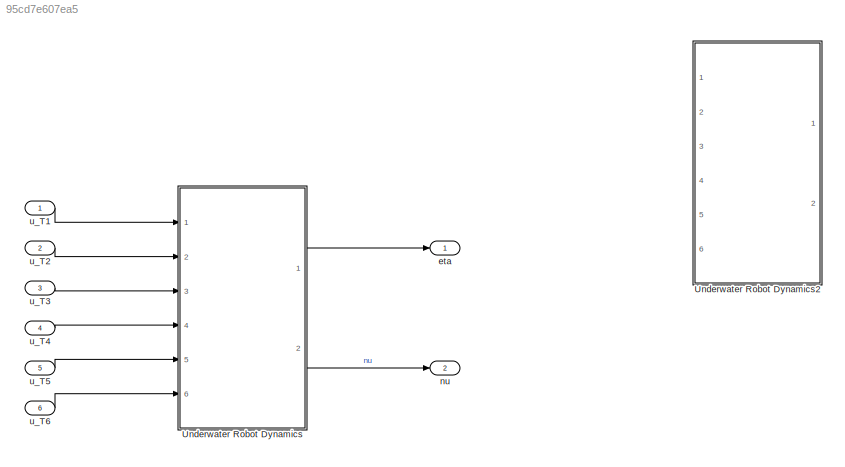
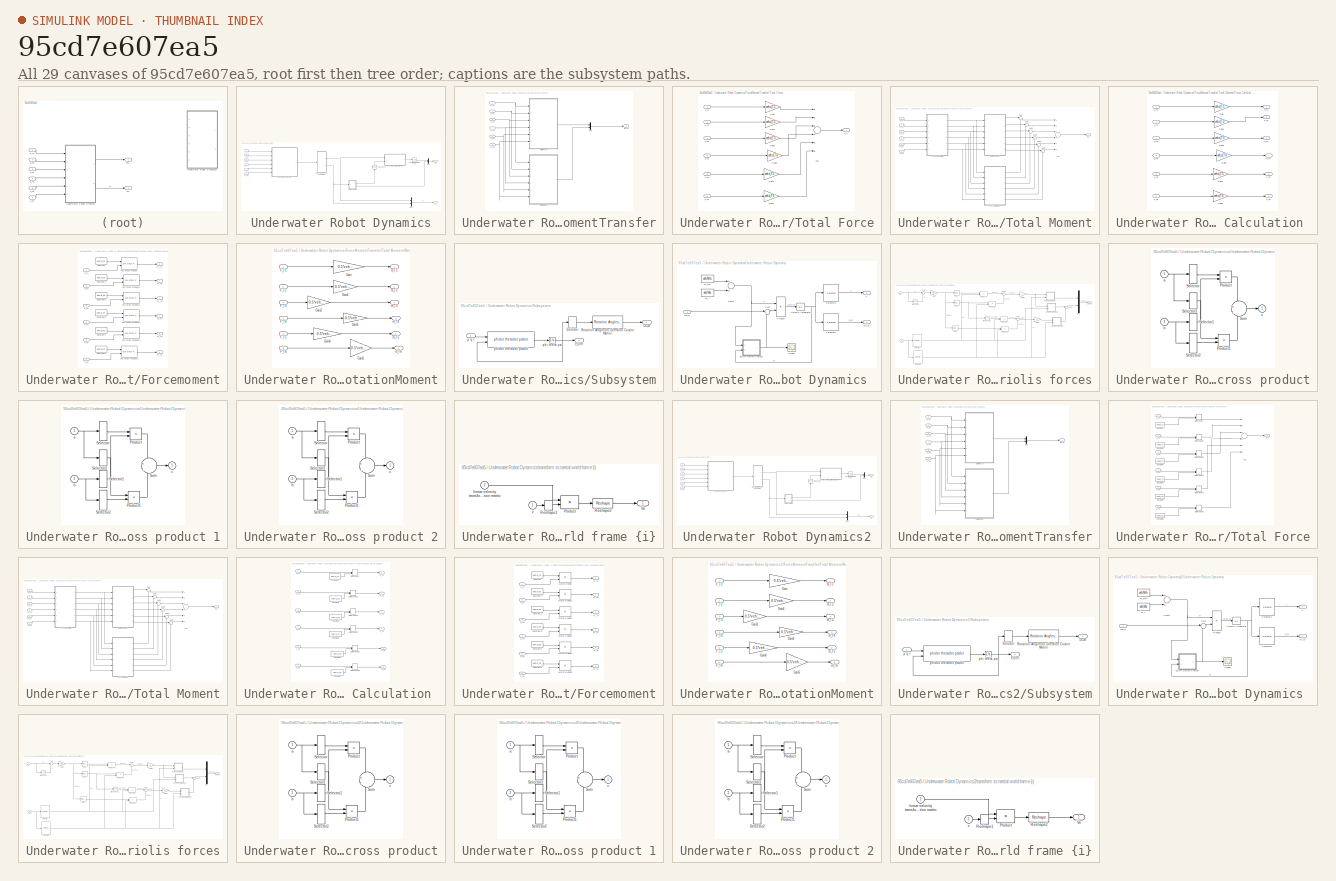
[diagram: thumbnail index - all 29 canvases of the model, root first then tree order]
MODEL slx_95cd7e607ea5
KIND model
CONFIG AbsTol = auto
CONFIG EnableMultiTasking = off
CONFIG FixedStep = auto
CONFIG MaxStep = auto
CONFIG MinStep = auto
CONFIG RelTol = 1e-3
CONFIG SampleTimeConstraint = Unconstrained
CONFIG Solver = VariableStepAuto
CONFIG SolverName = VariableStepAuto
CONFIG StartTime = 0.0
CONFIG StopTime = 10.0
BLOCK [SubSystem] Underwater Robot Dynamics
  Ports = [6, 2]
  RequestExecContextInheritance = off
  Variant = off
BLOCK [SubSystem] Underwater Robot Dynamics/ForceMomentTransfer
  Ports = [6, 1]
  RequestExecContextInheritance = off
  Variant = off
BLOCK [Mux] Underwater Robot Dynamics/ForceMomentTransfer/Mux
  DisplayOption = bar
  Inputs = 2
  Ports = [2, 1]
BLOCK [SubSystem] Underwater Robot Dynamics/ForceMomentTransfer/Total Force
  Ports = [6, 1]
  RequestExecContextInheritance = off
  Variant = off
BLOCK [Sum] Underwater Robot Dynamics/ForceMomentTransfer/Total Force/Add
  InputSameDT = off
  Inputs = ++++++
  OutDataTypeStr = Inherit: Inherit via internal rule
  Ports = [6, 1]
  SaturateOnIntegerOverflow = off
BLOCK [Outport] Underwater Robot Dynamics/ForceMomentTransfer/Total Force/F_T
  IconDisplay = Port number
BLOCK [Gain] Underwater Robot Dynamics/ForceMomentTransfer/Total Force/Gain
  Gain = veh.d_T1
  OutDataTypeStr = Inherit: Inherit via internal rule
  ParamDataTypeStr = Inherit: Inherit via internal rule
  SaturateOnIntegerOverflow = off
BLOCK [Gain] Underwater Robot Dynamics/ForceMomentTransfer/Total Force/Gain1
  Gain = veh.d_T2
  OutDataTypeStr = Inherit: Inherit via internal rule
  ParamDataTypeStr = Inherit: Inherit via internal rule
  SaturateOnIntegerOverflow = off
BLOCK [Gain] Underwater Robot Dynamics/ForceMomentTransfer/Total Force/Gain2
  Gain = veh.d_T3
  OutDataTypeStr = Inherit: Inherit via internal rule
  ParamDataTypeStr = Inherit: Inherit via internal rule
  SaturateOnIntegerOverflow = off
BLOCK [Gain] Underwater Robot Dynamics/ForceMomentTransfer/Total Force/Gain3
  Gain = veh.d_T4
  OutDataTypeStr = Inherit: Inherit via internal rule
  ParamDataTypeStr = Inherit: Inherit via internal rule
  SaturateOnIntegerOverflow = off
BLOCK [Gain] Underwater Robot Dynamics/ForceMomentTransfer/Total Force/Gain4
  Gain = veh.d_T5
  OutDataTypeStr = Inherit: Inherit via internal rule
  ParamDataTypeStr = Inherit: Inherit via internal rule
  SaturateOnIntegerOverflow = off
BLOCK [Gain] Underwater Robot Dynamics/ForceMomentTransfer/Total Force/Gain5
  Gain = veh.d_T6
  OutDataTypeStr = Inherit: Inherit via internal rule
  ParamDataTypeStr = Inherit: Inherit via internal rule
  SaturateOnIntegerOverflow = off
BLOCK [Inport] Underwater Robot Dynamics/ForceMomentTransfer/Total Force/u_T1
  IconDisplay = Port number
BLOCK [Inport] Underwater Robot Dynamics/ForceMomentTransfer/Total Force/u_T2
  IconDisplay = Port number
  Port = 2
BLOCK [Inport] Underwater Robot Dynamics/ForceMomentTransfer/Total Force/u_T3
  IconDisplay = Port number
  Port = 3
BLOCK [Inport] Underwater Robot Dynamics/ForceMomentTransfer/Total Force/u_T4
  IconDisplay = Port number
  Port = 4
BLOCK [Inport] Underwater Robot Dynamics/ForceMomentTransfer/Total Force/u_T5
  IconDisplay = Port number
  Port = 5
BLOCK [Inport] Underwater Robot Dynamics/ForceMomentTransfer/Total Force/u_T6
  IconDisplay = Port number
  Port = 6
BLOCK [SubSystem] Underwater Robot Dynamics/ForceMomentTransfer/Total Moment
  Ports = [6, 1]
  RequestExecContextInheritance = off
  Variant = off
BLOCK [Sum] Underwater Robot Dynamics/ForceMomentTransfer/Total Moment/Add
  InputSameDT = off
  Inputs = ++++++
  OutDataTypeStr = Inherit: Inherit via internal rule
  Ports = [6, 1]
  SaturateOnIntegerOverflow = off
BLOCK [SubSystem] Underwater Robot Dynamics/ForceMomentTransfer/Total Moment/Force Calculation 
  Ports = [6, 6]
  RequestExecContextInheritance = off
  Variant = off
BLOCK [Outport] Underwater Robot Dynamics/ForceMomentTransfer/Total Moment/Force Calculation /F_T1
  IconDisplay = Port number
BLOCK [Outport] Underwater Robot Dynamics/ForceMomentTransfer/Total Moment/Force Calculation /F_T2
  IconDisplay = Port number
  Port = 2
BLOCK [Outport] Underwater Robot Dynamics/ForceMomentTransfer/Total Moment/Force Calculation /F_T3
  IconDisplay = Port number
  Port = 3
BLOCK [Outport] Underwater Robot Dynamics/ForceMomentTransfer/Total Moment/Force Calculation /F_T4
  IconDisplay = Port number
  Port = 4
BLOCK [Outport] Underwater Robot Dynamics/ForceMomentTransfer/Total Moment/Force Calculation /F_T5
  IconDisplay = Port number
  Port = 5
BLOCK [Outport] Underwater Robot Dynamics/ForceMomentTransfer/Total Moment/Force Calculation /F_T6
  IconDisplay = Port number
  Port = 6
BLOCK [Gain] Underwater Robot Dynamics/ForceMomentTransfer/Total Moment/Force Calculation /Gain
  Gain = veh.d_T1
  OutDataTypeStr = Inherit: Inherit via internal rule
  ParamDataTypeStr = Inherit: Inherit via internal rule
  SaturateOnIntegerOverflow = off
BLOCK [Gain] Underwater Robot Dynamics/ForceMomentTransfer/Total Moment/Force Calculation /Gain1
  Gain = veh.d_T2
  OutDataTypeStr = Inherit: Inherit via internal rule
  ParamDataTypeStr = Inherit: Inherit via internal rule
  SaturateOnIntegerOverflow = off
BLOCK [Gain] Underwater Robot Dynamics/ForceMomentTransfer/Total Moment/Force Calculation /Gain2
  Gain = veh.d_T3
  OutDataTypeStr = Inherit: Inherit via internal rule
  ParamDataTypeStr = Inherit: Inherit via internal rule
  SaturateOnIntegerOverflow = off
BLOCK [Gain] Underwater Robot Dynamics/ForceMomentTransfer/Total Moment/Force Calculation /Gain3
  Gain = veh.d_T4
  OutDataTypeStr = Inherit: Inherit via internal rule
  ParamDataTypeStr = Inherit: Inherit via internal rule
  SaturateOnIntegerOverflow = off
BLOCK [Gain] Underwater Robot Dynamics/ForceMomentTransfer/Total Moment/Force Calculation /Gain4
  Gain = veh.d_T5
  OutDataTypeStr = Inherit: Inherit via internal rule
  ParamDataTypeStr = Inherit: Inherit via internal rule
  SaturateOnIntegerOverflow = off
BLOCK [Gain] Underwater Robot Dynamics/ForceMomentTransfer/Total Moment/Force Calculation /Gain5
  Gain = veh.d_T6
  OutDataTypeStr = Inherit: Inherit via internal rule
  ParamDataTypeStr = Inherit: Inherit via internal rule
  SaturateOnIntegerOverflow = off
BLOCK [Inport] Underwater Robot Dynamics/ForceMomentTransfer/Total Moment/Force Calculation /u_T1
  IconDisplay = Port number
BLOCK [Inport] Underwater Robot Dynamics/ForceMomentTransfer/Total Moment/Force Calculation /u_T2
  IconDisplay = Port number
  Port = 2
BLOCK [Inport] Underwater Robot Dynamics/ForceMomentTransfer/Total Moment/Force Calculation /u_T3
  IconDisplay = Port number
  Port = 3
BLOCK [Inport] Underwater Robot Dynamics/ForceMomentTransfer/Total Moment/Force Calculation /u_T4
  IconDisplay = Port number
  Port = 4
BLOCK [Inport] Underwater Robot Dynamics/ForceMomentTransfer/Total Moment/Force Calculation /u_T5
  IconDisplay = Port number
  Port = 5
BLOCK [Inport] Underwater Robot Dynamics/ForceMomentTransfer/Total Moment/Force Calculation /u_T6
  IconDisplay = Port number
  Port = 6
BLOCK [SubSystem] Underwater Robot Dynamics/ForceMomentTransfer/Total Moment/Forcemoment
  Ports = [6, 6]
  RequestExecContextInheritance = off
  Variant = off
BLOCK [Reference] Underwater Robot Dynamics/ForceMomentTransfer/Total Moment/Forcemoment/3x3 Cross Product  REF=sharedutil/3x3 Cross Product
  Ports = [2, 1]
  SourceBlock = sharedutil/3x3 Cross Product
  SourceType = CrossProduct
BLOCK [Reference] Underwater Robot Dynamics/ForceMomentTransfer/Total Moment/Forcemoment/3x3 Cross Product1  REF=sharedutil/3x3 Cross Product
  Ports = [2, 1]
  SourceBlock = sharedutil/3x3 Cross Product
  SourceType = CrossProduct
BLOCK [Reference] Underwater Robot Dynamics/ForceMomentTransfer/Total Moment/Forcemoment/3x3 Cross Product2  REF=sharedutil/3x3 Cross Product
  Ports = [2, 1]
  SourceBlock = sharedutil/3x3 Cross Product
  SourceType = CrossProduct
BLOCK [Reference] Underwater Robot Dynamics/ForceMomentTransfer/Total Moment/Forcemoment/3x3 Cross Product3  REF=sharedutil/3x3 Cross Product
  Ports = [2, 1]
  SourceBlock = sharedutil/3x3 Cross Product
  SourceType = CrossProduct
BLOCK [Reference] Underwater Robot Dynamics/ForceMomentTransfer/Total Moment/Forcemoment/3x3 Cross Product4  REF=sharedutil/3x3 Cross Product
  Ports = [2, 1]
  SourceBlock = sharedutil/3x3 Cross Product
  SourceType = CrossProduct
BLOCK [Reference] Underwater Robot Dynamics/ForceMomentTransfer/Total Moment/Forcemoment/3x3 Cross Product5  REF=sharedutil/3x3 Cross Product
  Ports = [2, 1]
  SourceBlock = sharedutil/3x3 Cross Product
  SourceType = CrossProduct
BLOCK [Constant] Underwater Robot Dynamics/ForceMomentTransfer/Total Moment/Forcemoment/Constant
  Value = veh.d_T1
BLOCK [Constant] Underwater Robot Dynamics/ForceMomentTransfer/Total Moment/Forcemoment/Constant1
  Value = veh.d_T2
BLOCK [Constant] Underwater Robot Dynamics/ForceMomentTransfer/Total Moment/Forcemoment/Constant2
  Value = veh.d_T3
BLOCK [Constant] Underwater Robot Dynamics/ForceMomentTransfer/Total Moment/Forcemoment/Constant3
  Value = veh.d_T4
BLOCK [Constant] Underwater Robot Dynamics/ForceMomentTransfer/Total Moment/Forcemoment/Constant4
  Value = veh.d_T5
BLOCK [Constant] Underwater Robot Dynamics/ForceMomentTransfer/Total Moment/Forcemoment/Constant5
  Value = veh.d_T6
BLOCK [Inport] Underwater Robot Dynamics/ForceMomentTransfer/Total Moment/Forcemoment/F_T1
  IconDisplay = Port number
BLOCK [Inport] Underwater Robot Dynamics/ForceMomentTransfer/Total Moment/Forcemoment/F_T2
  IconDisplay = Port number
  Port = 2
BLOCK [Inport] Underwater Robot Dynamics/ForceMomentTransfer/Total Moment/Forcemoment/F_T3
  IconDisplay = Port number
  Port = 3
BLOCK [Inport] Underwater Robot Dynamics/ForceMomentTransfer/Total Moment/Forcemoment/F_T4
  IconDisplay = Port number
  Port = 4
BLOCK [Inport] Underwater Robot Dynamics/ForceMomentTransfer/Total Moment/Forcemoment/F_T5
  IconDisplay = Port number
  Port = 5
BLOCK [Inport] Underwater Robot Dynamics/ForceMomentTransfer/Total Moment/Forcemoment/F_T6
  IconDisplay = Port number
  Port = 6
BLOCK [Outport] Underwater Robot Dynamics/ForceMomentTransfer/Total Moment/Forcemoment/m_T1
  IconDisplay = Port number
BLOCK [Outport] Underwater Robot Dynamics/ForceMomentTransfer/Total Moment/Forcemoment/m_T2
  IconDisplay = Port number
  Port = 2
BLOCK [Outport] Underwater Robot Dynamics/ForceMomentTransfer/Total Moment/Forcemoment/m_T3
  IconDisplay = Port number
  Port = 3
BLOCK [Outport] Underwater Robot Dynamics/ForceMomentTransfer/Total Moment/Forcemoment/m_T4
  IconDisplay = Port number
  Port = 4
BLOCK [Outport] Underwater Robot Dynamics/ForceMomentTransfer/Total Moment/Forcemoment/m_T5
  IconDisplay = Port number
  Port = 5
BLOCK [Outport] Underwater Robot Dynamics/ForceMomentTransfer/Total Moment/Forcemoment/m_T6
  IconDisplay = Port number
  Port = 6
BLOCK [SubSystem] Underwater Robot Dynamics/ForceMomentTransfer/Total Moment/RotationMoment
  Ports = [6, 6]
  RequestExecContextInheritance = off
  Variant = off
BLOCK [Inport] Underwater Robot Dynamics/ForceMomentTransfer/Total Moment/RotationMoment/F_T1
  IconDisplay = Port number
BLOCK [Inport] Underwater Robot Dynamics/ForceMomentTransfer/Total Moment/RotationMoment/F_T2
  IconDisplay = Port number
  Port = 2
BLOCK [Inport] Underwater Robot Dynamics/ForceMomentTransfer/Total Moment/RotationMoment/F_T3
  IconDisplay = Port number
  Port = 3
BLOCK [Inport] Underwater Robot Dynamics/ForceMomentTransfer/Total Moment/RotationMoment/F_T4
  IconDisplay = Port number
  Port = 4
BLOCK [Inport] Underwater Robot Dynamics/ForceMomentTransfer/Total Moment/RotationMoment/F_T5
  IconDisplay = Port number
  Port = 5
BLOCK [Inport] Underwater Robot Dynamics/ForceMomentTransfer/Total Moment/RotationMoment/F_T6
  IconDisplay = Port number
  Port = 6
BLOCK [Gain] Underwater Robot Dynamics/ForceMomentTransfer/Total Moment/RotationMoment/Gain
  Gain = 0.5*veh.b_T1
  OutDataTypeStr = Inherit: Inherit via internal rule
  ParamDataTypeStr = Inherit: Inherit via internal rule
  SaturateOnIntegerOverflow = off
BLOCK [Gain] Underwater Robot Dynamics/ForceMomentTransfer/Total Moment/RotationMoment/Gain1
  Gain = 0.5*veh.b_T2
  OutDataTypeStr = Inherit: Inherit via internal rule
  ParamDataTypeStr = Inherit: Inherit via internal rule
  SaturateOnIntegerOverflow = off
BLOCK [Gain] Underwater Robot Dynamics/ForceMomentTransfer/Total Moment/RotationMoment/Gain2
  Gain = 0.5*veh.b_T3
  OutDataTypeStr = Inherit: Inherit via internal rule
  ParamDataTypeStr = Inherit: Inherit via internal rule
  SaturateOnIntegerOverflow = off
BLOCK [Gain] Underwater Robot Dynamics/ForceMomentTransfer/Total Moment/RotationMoment/Gain3
  Gain = 0.5*veh.b_T4
  OutDataTypeStr = Inherit: Inherit via internal rule
  ParamDataTypeStr = Inherit: Inherit via internal rule
  SaturateOnIntegerOverflow = off
BLOCK [Gain] Underwater Robot Dynamics/ForceMomentTransfer/Total Moment/RotationMoment/Gain4
  Gain = 0.5*veh.b_T5
  OutDataTypeStr = Inherit: Inherit via internal rule
  ParamDataTypeStr = Inherit: Inherit via internal rule
  SaturateOnIntegerOverflow = off
BLOCK [Gain] Underwater Robot Dynamics/ForceMomentTransfer/Total Moment/RotationMoment/Gain5
  Gain = 0.5*veh.b_T6
  OutDataTypeStr = Inherit: Inherit via internal rule
  ParamDataTypeStr = Inherit: Inherit via internal rule
  SaturateOnIntegerOverflow = off
BLOCK [Outport] Underwater Robot Dynamics/ForceMomentTransfer/Total Moment/RotationMoment/m_T1
  IconDisplay = Port number
BLOCK [Outport] Underwater Robot Dynamics/ForceMomentTransfer/Total Moment/RotationMoment/m_T2
  IconDisplay = Port number
  Port = 2
BLOCK [Outport] Underwater Robot Dynamics/ForceMomentTransfer/Total Moment/RotationMoment/m_T3
  IconDisplay = Port number
  Port = 3
BLOCK [Outport] Underwater Robot Dynamics/ForceMomentTransfer/Total Moment/RotationMoment/m_T4
  IconDisplay = Port number
  Port = 4
BLOCK [Outport] Underwater Robot Dynamics/ForceMomentTransfer/Total Moment/RotationMoment/m_T5
  IconDisplay = Port number
  Port = 5
BLOCK [Outport] Underwater Robot Dynamics/ForceMomentTransfer/Total Moment/RotationMoment/m_T6
  IconDisplay = Port number
  Port = 6
BLOCK [Sum] Underwater Robot Dynamics/ForceMomentTransfer/Total Moment/Sum
  IconShape = round
  InputSameDT = off
  Inputs = |++
  OutDataTypeStr = Inherit: Inherit via internal rule
  Ports = [2, 1]
  SaturateOnIntegerOverflow = off
BLOCK [Sum] Underwater Robot Dynamics/ForceMomentTransfer/Total Moment/Sum1
  IconShape = round
  InputSameDT = off
  Inputs = |++
  OutDataTypeStr = Inherit: Inherit via internal rule
  Ports = [2, 1]
  SaturateOnIntegerOverflow = off
BLOCK [Sum] Underwater Robot Dynamics/ForceMomentTransfer/Total Moment/Sum2
  IconShape = round
  InputSameDT = off
  Inputs = |++
  OutDataTypeStr = Inherit: Inherit via internal rule
  Ports = [2, 1]
  SaturateOnIntegerOverflow = off
BLOCK [Sum] Underwater Robot Dynamics/ForceMomentTransfer/Total Moment/Sum3
  IconShape = round
  InputSameDT = off
  Inputs = |++
  OutDataTypeStr = Inherit: Inherit via internal rule
  Ports = [2, 1]
  SaturateOnIntegerOverflow = off
BLOCK [Sum] Underwater Robot Dynamics/ForceMomentTransfer/Total Moment/Sum4
  IconShape = round
  InputSameDT = off
  Inputs = |++
  OutDataTypeStr = Inherit: Inherit via internal rule
  Ports = [2, 1]
  SaturateOnIntegerOverflow = off
BLOCK [Sum] Underwater Robot Dynamics/ForceMomentTransfer/Total Moment/Sum5
  IconShape = round
  InputSameDT = off
  Inputs = |++
  OutDataTypeStr = Inherit: Inherit via internal rule
  Ports = [2, 1]
  SaturateOnIntegerOverflow = off
BLOCK [Outport] Underwater Robot Dynamics/ForceMomentTransfer/Total Moment/m_T
  IconDisplay = Port number
BLOCK [Inport] Underwater Robot Dynamics/ForceMomentTransfer/Total Moment/u_T1
  IconDisplay = Port number
BLOCK [Inport] Underwater Robot Dynamics/ForceMomentTransfer/Total Moment/u_T2
  IconDisplay = Port number
  Port = 2
BLOCK [Inport] Underwater Robot Dynamics/ForceMomentTransfer/Total Moment/u_T3
  IconDisplay = Port number
  Port = 3
BLOCK [Inport] Underwater Robot Dynamics/ForceMomentTransfer/Total Moment/u_T4
  IconDisplay = Port number
  Port = 4
BLOCK [Inport] Underwater Robot Dynamics/ForceMomentTransfer/Total Moment/u_T5
  IconDisplay = Port number
  Port = 5
BLOCK [Inport] Underwater Robot Dynamics/ForceMomentTransfer/Total Moment/u_T6
  IconDisplay = Port number
  Port = 6
BLOCK [Outport] Underwater Robot Dynamics/ForceMomentTransfer/tau_b
  IconDisplay = Port number
BLOCK [Inport] Underwater Robot Dynamics/ForceMomentTransfer/u_T1
  IconDisplay = Port number
BLOCK [Inport] Underwater Robot Dynamics/ForceMomentTransfer/u_T2
  IconDisplay = Port number
  Port = 2
BLOCK [Inport] Underwater Robot Dynamics/ForceMomentTransfer/u_T3
  IconDisplay = Port number
  Port = 3
BLOCK [Inport] Underwater Robot Dynamics/ForceMomentTransfer/u_T4
  IconDisplay = Port number
  Port = 4
BLOCK [Inport] Underwater Robot Dynamics/ForceMomentTransfer/u_T5
  IconDisplay = Port number
  Port = 5
BLOCK [Inport] Underwater Robot Dynamics/ForceMomentTransfer/u_T6
  IconDisplay = Port number
  Port = 6
BLOCK [Mux] Underwater Robot Dynamics/Mux
  DisplayOption = bar
  Inputs = 2
  Ports = [2, 1]
BLOCK [Mux] Underwater Robot Dynamics/Mux1
  DisplayOption = bar
  Inputs = 2
  Ports = [2, 1]
BLOCK [Integrator] Underwater Robot Dynamics/Position Integrator(x,y,z)
  Ports = [1, 1]
BLOCK [SubSystem] Underwater Robot Dynamics/Subsystem
  Ports = [1, 2]
  RequestExecContextInheritance = off
  Variant = off
BLOCK [Outport] Underwater Robot Dynamics/Subsystem/DCM
  IconDisplay = Port number
BLOCK [Outport] Underwater Robot Dynamics/Subsystem/Euler
  IconDisplay = Port number
  Port = 2
BLOCK [Reference] Underwater Robot Dynamics/Subsystem/Rotation Angles to Direction Cosine Matrix  REF=sharedtransform/Rotation Angles to
Direction Cosine Matrix
  AttributesFormatString = Rotation Order: %<rotationOrder>
  Ports = [1, 1]
  SourceBlock = sharedtransform/Rotation Angles to\nDirection Cosine Matrix
  SourceType = Ang2DCM
BLOCK [Selector] Underwater Robot Dynamics/Subsystem/Selector
  IndexOptions = Index vector (dialog)
  Indices = [3 2 1]
  InputPortWidth = 3
  OutputSizes = 1
  Ports = [1, 1]
BLOCK [Inport] Underwater Robot Dynamics/Subsystem/p q r 
  IconDisplay = Port number
BLOCK [Integrator] Underwater Robot Dynamics/Subsystem/phi theta psi
  Ports = [1, 1]
BLOCK [Reference] Underwater Robot Dynamics/Subsystem/phidot thetadot psidot  REF=shared6dofsys/DCM & Euler Angles (Euler)/phidot  (lib defined in slx_91fbb8bad28b)
thetadot
psidot
  Ports = [2, 1]
  SourceBlock = shared6dofsys/DCM & Euler Angles (Euler)/phidot\nthetadot\npsidot
  SourceType = SubSystem
BLOCK [Math] Underwater Robot Dynamics/Transpose
  Operator = transpose
  Ports = [1, 1]
BLOCK [SubSystem] Underwater Robot Dynamics/Underwater Robot Dynamics 
  Ports = [1, 2]
  RequestExecContextInheritance = off
  Variant = off
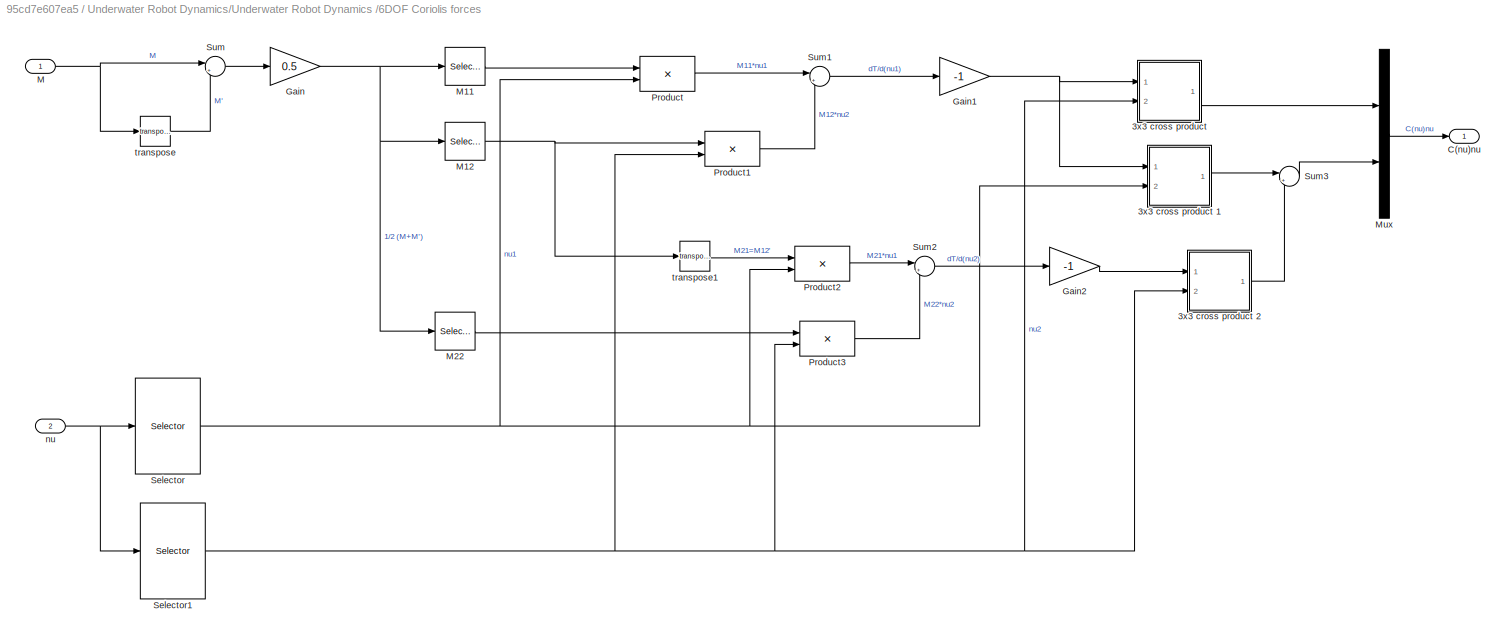
BLOCK [SubSystem] Underwater Robot Dynamics/Underwater Robot Dynamics /6DOF Coriolis forces
  Ports = [2, 1]
  RequestExecContextInheritance = off
  Variant = off
BLOCK [SubSystem] Underwater Robot Dynamics/Underwater Robot Dynamics /6DOF Coriolis forces/3x3 cross product
  Ports = [2, 1]
  RequestExecContextInheritance = off
  Variant = off
BLOCK [SubSystem] Underwater Robot Dynamics/Underwater Robot Dynamics /6DOF Coriolis forces/3x3 cross product 1
  Ports = [2, 1]
  RequestExecContextInheritance = off
  Variant = off
BLOCK [Product] Underwater Robot Dynamics/Underwater Robot Dynamics /6DOF Coriolis forces/3x3 cross product 1/Product
  Ports = [2, 1]
  RndMeth = Floor
BLOCK [Product] Underwater Robot Dynamics/Underwater Robot Dynamics /6DOF Coriolis forces/3x3 cross product 1/Product1
  Ports = [2, 1]
  RndMeth = Floor
BLOCK [Selector] Underwater Robot Dynamics/Underwater Robot Dynamics /6DOF Coriolis forces/3x3 cross product 1/Selector
  IndexOptions = Index vector (dialog)
  Indices = [2 3 1]
  InputPortWidth = 3
  OutputSizes = 1
  Ports = [1, 1]
BLOCK [Selector] Underwater Robot Dynamics/Underwater Robot Dynamics /6DOF Coriolis forces/3x3 cross product 1/Selector1
  IndexOptions = Index vector (dialog)
  Indices = [3 1 2]
  InputPortWidth = 3
  OutputSizes = 1
  Ports = [1, 1]
BLOCK [Selector] Underwater Robot Dynamics/Underwater Robot Dynamics /6DOF Coriolis forces/3x3 cross product 1/Selector2
  IndexOptions = Index vector (dialog)
  Indices = [2 3 1]
  InputPortWidth = 3
  OutputSizes = 1
  Ports = [1, 1]
BLOCK [Selector] Underwater Robot Dynamics/Underwater Robot Dynamics /6DOF Coriolis forces/3x3 cross product 1/Selector3
  IndexOptions = Index vector (dialog)
  Indices = [3 1 2]
  InputPortWidth = 3
  OutputSizes = 1
  Ports = [1, 1]
BLOCK [Sum] Underwater Robot Dynamics/Underwater Robot Dynamics /6DOF Coriolis forces/3x3 cross product 1/Sum
  IconShape = round
  Inputs = +|-
  Ports = [2, 1]
BLOCK [Inport] Underwater Robot Dynamics/Underwater Robot Dynamics /6DOF Coriolis forces/3x3 cross product 1/a
  IconDisplay = Port number
BLOCK [Inport] Underwater Robot Dynamics/Underwater Robot Dynamics /6DOF Coriolis forces/3x3 cross product 1/b
  IconDisplay = Port number
  Port = 2
BLOCK [Outport] Underwater Robot Dynamics/Underwater Robot Dynamics /6DOF Coriolis forces/3x3 cross product 1/c
  IconDisplay = Port number
  InitialOutput = 0
BLOCK [SubSystem] Underwater Robot Dynamics/Underwater Robot Dynamics /6DOF Coriolis forces/3x3 cross product 2
  Ports = [2, 1]
  RequestExecContextInheritance = off
  Variant = off
BLOCK [Product] Underwater Robot Dynamics/Underwater Robot Dynamics /6DOF Coriolis forces/3x3 cross product 2/Product
  Ports = [2, 1]
  RndMeth = Floor
BLOCK [Product] Underwater Robot Dynamics/Underwater Robot Dynamics /6DOF Coriolis forces/3x3 cross product 2/Product1
  Ports = [2, 1]
  RndMeth = Floor
BLOCK [Selector] Underwater Robot Dynamics/Underwater Robot Dynamics /6DOF Coriolis forces/3x3 cross product 2/Selector
  IndexOptions = Index vector (dialog)
  Indices = [2 3 1]
  InputPortWidth = 3
  OutputSizes = 1
  Ports = [1, 1]
BLOCK [Selector] Underwater Robot Dynamics/Underwater Robot Dynamics /6DOF Coriolis forces/3x3 cross product 2/Selector1
  IndexOptions = Index vector (dialog)
  Indices = [3 1 2]
  InputPortWidth = 3
  OutputSizes = 1
  Ports = [1, 1]
BLOCK [Selector] Underwater Robot Dynamics/Underwater Robot Dynamics /6DOF Coriolis forces/3x3 cross product 2/Selector2
  IndexOptions = Index vector (dialog)
  Indices = [2 3 1]
  InputPortWidth = 3
  OutputSizes = 1
  Ports = [1, 1]
BLOCK [Selector] Underwater Robot Dynamics/Underwater Robot Dynamics /6DOF Coriolis forces/3x3 cross product 2/Selector3
  IndexOptions = Index vector (dialog)
  Indices = [3 1 2]
  InputPortWidth = 3
  OutputSizes = 1
  Ports = [1, 1]
BLOCK [Sum] Underwater Robot Dynamics/Underwater Robot Dynamics /6DOF Coriolis forces/3x3 cross product 2/Sum
  IconShape = round
  Inputs = +|-
  Ports = [2, 1]
BLOCK [Inport] Underwater Robot Dynamics/Underwater Robot Dynamics /6DOF Coriolis forces/3x3 cross product 2/a
  IconDisplay = Port number
BLOCK [Inport] Underwater Robot Dynamics/Underwater Robot Dynamics /6DOF Coriolis forces/3x3 cross product 2/b
  IconDisplay = Port number
  Port = 2
BLOCK [Outport] Underwater Robot Dynamics/Underwater Robot Dynamics /6DOF Coriolis forces/3x3 cross product 2/c
  IconDisplay = Port number
  InitialOutput = 0
BLOCK [Product] Underwater Robot Dynamics/Underwater Robot Dynamics /6DOF Coriolis forces/3x3 cross product/Product
  Ports = [2, 1]
  RndMeth = Floor
BLOCK [Product] Underwater Robot Dynamics/Underwater Robot Dynamics /6DOF Coriolis forces/3x3 cross product/Product1
  Ports = [2, 1]
  RndMeth = Floor
BLOCK [Selector] Underwater Robot Dynamics/Underwater Robot Dynamics /6DOF Coriolis forces/3x3 cross product/Selector
  IndexOptions = Index vector (dialog)
  Indices = [2 3 1]
  InputPortWidth = 3
  OutputSizes = 1
  Ports = [1, 1]
BLOCK [Selector] Underwater Robot Dynamics/Underwater Robot Dynamics /6DOF Coriolis forces/3x3 cross product/Selector1
  IndexOptions = Index vector (dialog)
  Indices = [3 1 2]
  InputPortWidth = 3
  OutputSizes = 1
  Ports = [1, 1]
BLOCK [Selector] Underwater Robot Dynamics/Underwater Robot Dynamics /6DOF Coriolis forces/3x3 cross product/Selector2
  IndexOptions = Index vector (dialog)
  Indices = [2 3 1]
  InputPortWidth = 3
  OutputSizes = 1
  Ports = [1, 1]
BLOCK [Selector] Underwater Robot Dynamics/Underwater Robot Dynamics /6DOF Coriolis forces/3x3 cross product/Selector3
  IndexOptions = Index vector (dialog)
  Indices = [3 1 2]
  InputPortWidth = 3
  OutputSizes = 1
  Ports = [1, 1]
BLOCK [Sum] Underwater Robot Dynamics/Underwater Robot Dynamics /6DOF Coriolis forces/3x3 cross product/Sum
  IconShape = round
  Inputs = +|-
  Ports = [2, 1]
BLOCK [Inport] Underwater Robot Dynamics/Underwater Robot Dynamics /6DOF Coriolis forces/3x3 cross product/a
  IconDisplay = Port number
BLOCK [Inport] Underwater Robot Dynamics/Underwater Robot Dynamics /6DOF Coriolis forces/3x3 cross product/b
  IconDisplay = Port number
  Port = 2
BLOCK [Outport] Underwater Robot Dynamics/Underwater Robot Dynamics /6DOF Coriolis forces/3x3 cross product/c
  IconDisplay = Port number
  InitialOutput = 0
BLOCK [Outport] Underwater Robot Dynamics/Underwater Robot Dynamics /6DOF Coriolis forces/C(nu)nu
  IconDisplay = Port number
BLOCK [Gain] Underwater Robot Dynamics/Underwater Robot Dynamics /6DOF Coriolis forces/Gain
  Gain = 0.5
BLOCK [Gain] Underwater Robot Dynamics/Underwater Robot Dynamics /6DOF Coriolis forces/Gain1
  Gain = -1
BLOCK [Gain] Underwater Robot Dynamics/Underwater Robot Dynamics /6DOF Coriolis forces/Gain2
  Gain = -1
BLOCK [Inport] Underwater Robot Dynamics/Underwater Robot Dynamics /6DOF Coriolis forces/M
  IconDisplay = Port number
BLOCK [Selector] Underwater Robot Dynamics/Underwater Robot Dynamics /6DOF Coriolis forces/M11
  IndexOptions = Index vector (dialog),Index vector (dialog)
  Indices = [1 2 3],[1 2 3]
  InputPortWidth = 3
  NumberOfDimensions = 2
  OutputSizes = 1
  Ports = [1, 1]
BLOCK [Selector] Underwater Robot Dynamics/Underwater Robot Dynamics /6DOF Coriolis forces/M12
  IndexOptions = Index vector (dialog),Index vector (dialog)
  Indices = [1 2 3],[4 5 6]
  InputPortWidth = 3
  NumberOfDimensions = 2
  OutputSizes = 1
  Ports = [1, 1]
BLOCK [Selector] Underwater Robot Dynamics/Underwater Robot Dynamics /6DOF Coriolis forces/M22
  IndexOptions = Index vector (dialog),Index vector (dialog)
  Indices = [4 5 6],[4 5 6]
  InputPortWidth = 3
  NumberOfDimensions = 2
  OutputSizes = 1
  Ports = [1, 1]
BLOCK [Mux] Underwater Robot Dynamics/Underwater Robot Dynamics /6DOF Coriolis forces/Mux
  DisplayOption = bar
  Inputs = 2
  Ports = [2, 1]
BLOCK [Product] Underwater Robot Dynamics/Underwater Robot Dynamics /6DOF Coriolis forces/Product
  InputSameDT = off
  Multiplication = Matrix(*)
  Ports = [2, 1]
  RndMeth = Floor
BLOCK [Product] Underwater Robot Dynamics/Underwater Robot Dynamics /6DOF Coriolis forces/Product1
  InputSameDT = off
  Multiplication = Matrix(*)
  Ports = [2, 1]
  RndMeth = Floor
BLOCK [Product] Underwater Robot Dynamics/Underwater Robot Dynamics /6DOF Coriolis forces/Product2
  InputSameDT = off
  Multiplication = Matrix(*)
  Ports = [2, 1]
  RndMeth = Floor
BLOCK [Product] Underwater Robot Dynamics/Underwater Robot Dynamics /6DOF Coriolis forces/Product3
  InputSameDT = off
  Multiplication = Matrix(*)
  Ports = [2, 1]
  RndMeth = Floor
BLOCK [Selector] Underwater Robot Dynamics/Underwater Robot Dynamics /6DOF Coriolis forces/Selector
  IndexOptions = Index vector (dialog)
  Indices = [1 2 3]
  InputPortWidth = 6
  OutputSizes = 1
  Ports = [1, 1]
BLOCK [Selector] Underwater Robot Dynamics/Underwater Robot Dynamics /6DOF Coriolis forces/Selector1
  IndexOptions = Index vector (dialog)
  Indices = [4 5 6]
  InputPortWidth = 6
  OutputSizes = 1
  Ports = [1, 1]
BLOCK [Sum] Underwater Robot Dynamics/Underwater Robot Dynamics /6DOF Coriolis forces/Sum
  IconShape = round
  InputSameDT = off
  Inputs = |++
  OutDataTypeStr = Inherit: Inherit via internal rule
  Ports = [2, 1]
BLOCK [Sum] Underwater Robot Dynamics/Underwater Robot Dynamics /6DOF Coriolis forces/Sum1
  IconShape = round
  InputSameDT = off
  Inputs = |++
  OutDataTypeStr = Inherit: Inherit via internal rule
  Ports = [2, 1]
BLOCK [Sum] Underwater Robot Dynamics/Underwater Robot Dynamics /6DOF Coriolis forces/Sum2
  IconShape = round
  InputSameDT = off
  Inputs = |++
  OutDataTypeStr = Inherit: Inherit via internal rule
  Ports = [2, 1]
BLOCK [Sum] Underwater Robot Dynamics/Underwater Robot Dynamics /6DOF Coriolis forces/Sum3
  IconShape = round
  InputSameDT = off
  Inputs = |++
  OutDataTypeStr = Inherit: Inherit via internal rule
  Ports = [2, 1]
BLOCK [Inport] Underwater Robot Dynamics/Underwater Robot Dynamics /6DOF Coriolis forces/nu
  IconDisplay = Port number
  Port = 2
BLOCK [Math] Underwater Robot Dynamics/Underwater Robot Dynamics /6DOF Coriolis forces/transpose
  Operator = transpose
  Ports = [1, 1]
BLOCK [Math] Underwater Robot Dynamics/Underwater Robot Dynamics /6DOF Coriolis forces/transpose1
  Operator = transpose
  Ports = [1, 1]
BLOCK [Constant] Underwater Robot Dynamics/Underwater Robot Dynamics /M_A
  Value = veh.Ma
BLOCK [Constant] Underwater Robot Dynamics/Underwater Robot Dynamics /M_RB
  Value = veh.Mrb
BLOCK [Product] Underwater Robot Dynamics/Underwater Robot Dynamics /Product
  InputSameDT = off
  Inputs = /*
  Multiplication = Matrix(*)
  Ports = [2, 1]
  RndMeth = Floor
BLOCK [Scope] Underwater Robot Dynamics/Underwater Robot Dynamics /Scope
  NumInputPorts = 1
  Ports = [1]
  ScopeSpecificationString = Simulink.scopes.TimeScopeBlockCfg('CurrentConfiguration', extmgr.ConfigurationSet(extmgr.Configuration('Core','General UI',true),extmgr.Configuration('Core','Source UI',true),extmgr.Configuration('Sources','WiredSimulink',true,'DataLoggingVariableName','ScopeData3'),extmgr.Configuration('Visuals','Time Domain',true,'SerializedDisplays',{struct('MinYLimReal','-1.00000','MaxYLimReal','1.00000','YLab...<+1560ch>
BLOCK [Selector] Underwater Robot Dynamics/Underwater Robot Dynamics /Selector1
  IndexOptions = Index vector (dialog)
  Indices = [1 2 3]
  InputPortWidth = 6
  OutputSizes = 1
  Ports = [1, 1]
BLOCK [Selector] Underwater Robot Dynamics/Underwater Robot Dynamics /Selector2
  IndexOptions = Index vector (dialog)
  Indices = [4 5 6]
  InputPortWidth = 6
  OutputSizes = 1
  Ports = [1, 1]
BLOCK [Sum] Underwater Robot Dynamics/Underwater Robot Dynamics /Sum
  IconShape = round
  InputSameDT = off
  Inputs = |+-
  OutDataTypeStr = Inherit: Inherit via internal rule
  Ports = [2, 1]
  SaturateOnIntegerOverflow = off
BLOCK [Sum] Underwater Robot Dynamics/Underwater Robot Dynamics /Sum2
  InputSameDT = off
  OutDataTypeStr = Inherit: Inherit via internal rule
  Ports = [2, 1]
BLOCK [Integrator] Underwater Robot Dynamics/Underwater Robot Dynamics /Velocity Integrator
  Ports = [1, 1]
BLOCK [Inport] Underwater Robot Dynamics/Underwater Robot Dynamics /tau_b
  IconDisplay = Port number
BLOCK [Outport] Underwater Robot Dynamics/Underwater Robot Dynamics /v
  IconDisplay = Port number
BLOCK [Outport] Underwater Robot Dynamics/Underwater Robot Dynamics /w_ib
  IconDisplay = Port number
  Port = 2
BLOCK [Outport] Underwater Robot Dynamics/eta
  IconDisplay = Port number
BLOCK [Outport] Underwater Robot Dynamics/nu
  IconDisplay = Port number
  Port = 2
BLOCK [SubSystem] Underwater Robot Dynamics/transform to inertial world frame {i}
  Ports = [2, 1]
  RequestExecContextInheritance = off
  Variant = off
BLOCK [Product] Underwater Robot Dynamics/transform to inertial world frame {i}/Product
  Multiplication = Matrix(*)
  Ports = [2, 1]
  RndMeth = Floor
BLOCK [Reshape] Underwater Robot Dynamics/transform to inertial world frame {i}/Reshape1
  OutputDimensionality = Column vector (2-D)
  Ports = [1, 1]
BLOCK [Reshape] Underwater Robot Dynamics/transform to inertial world frame {i}/Reshape2
  Ports = [1, 1]
BLOCK [Outport] Underwater Robot Dynamics/transform to inertial world frame {i}/Ve
  IconDisplay = Port number
BLOCK [Inport] Underwater Robot Dynamics/transform to inertial world frame {i}/linear velocity transformation matrix
  IconDisplay = Port number
  Port = 2
BLOCK [Inport] Underwater Robot Dynamics/transform to inertial world frame {i}/v
  IconDisplay = Port number
BLOCK [Inport] Underwater Robot Dynamics/u_T1
  IconDisplay = Port number
BLOCK [Inport] Underwater Robot Dynamics/u_T2
  IconDisplay = Port number
  Port = 2
BLOCK [Inport] Underwater Robot Dynamics/u_T3
  IconDisplay = Port number
  Port = 3
BLOCK [Inport] Underwater Robot Dynamics/u_T4
  IconDisplay = Port number
  Port = 4
BLOCK [Inport] Underwater Robot Dynamics/u_T5
  IconDisplay = Port number
  Port = 5
BLOCK [Inport] Underwater Robot Dynamics/u_T6
  IconDisplay = Port number
  Port = 6
BLOCK [SubSystem] Underwater Robot Dynamics2
  Commented = on
  Ports = [6, 2]
  RequestExecContextInheritance = off
  Variant = off
BLOCK [SubSystem] Underwater Robot Dynamics2/ForceMomentTransfer
  Ports = [6, 1]
  RequestExecContextInheritance = off
  Variant = off
BLOCK [Mux] Underwater Robot Dynamics2/ForceMomentTransfer/Mux
  DisplayOption = bar
  Inputs = 2
  Ports = [2, 1]
BLOCK [SubSystem] Underwater Robot Dynamics2/ForceMomentTransfer/Total Force
  Ports = [6, 1]
  RequestExecContextInheritance = off
  Variant = off
BLOCK [Sum] Underwater Robot Dynamics2/ForceMomentTransfer/Total Force/Add
  InputSameDT = off
  Inputs = ++++++
  OutDataTypeStr = Inherit: Inherit via internal rule
  Ports = [6, 1]
  SaturateOnIntegerOverflow = off
BLOCK [Constant] Underwater Robot Dynamics2/ForceMomentTransfer/Total Force/Constant
  Value = veh.d_T1
BLOCK [Constant] Underwater Robot Dynamics2/ForceMomentTransfer/Total Force/Constant1
  Value = veh.d_T2
BLOCK [Constant] Underwater Robot Dynamics2/ForceMomentTransfer/Total Force/Constant2
  Value = veh.d_T3
BLOCK [Constant] Underwater Robot Dynamics2/ForceMomentTransfer/Total Force/Constant3
  Value = veh.d_T4
BLOCK [Constant] Underwater Robot Dynamics2/ForceMomentTransfer/Total Force/Constant4
  Value = veh.d_T5
BLOCK [Constant] Underwater Robot Dynamics2/ForceMomentTransfer/Total Force/Constant5
  Value = veh.d_T6
BLOCK [DotProduct] Underwater Robot Dynamics2/ForceMomentTransfer/Total Force/Dot Product
  OutDataTypeStr = Inherit: Inherit via internal rule
BLOCK [DotProduct] Underwater Robot Dynamics2/ForceMomentTransfer/Total Force/Dot Product1
  OutDataTypeStr = Inherit: Inherit via internal rule
BLOCK [DotProduct] Underwater Robot Dynamics2/ForceMomentTransfer/Total Force/Dot Product2
  OutDataTypeStr = Inherit: Inherit via internal rule
BLOCK [DotProduct] Underwater Robot Dynamics2/ForceMomentTransfer/Total Force/Dot Product3
  OutDataTypeStr = Inherit: Inherit via internal rule
BLOCK [DotProduct] Underwater Robot Dynamics2/ForceMomentTransfer/Total Force/Dot Product4
  OutDataTypeStr = Inherit: Inherit via internal rule
BLOCK [DotProduct] Underwater Robot Dynamics2/ForceMomentTransfer/Total Force/Dot Product5
  OutDataTypeStr = Inherit: Inherit via internal rule
BLOCK [Outport] Underwater Robot Dynamics2/ForceMomentTransfer/Total Force/F_T
  IconDisplay = Port number
BLOCK [Inport] Underwater Robot Dynamics2/ForceMomentTransfer/Total Force/u_T1
  IconDisplay = Port number
BLOCK [Inport] Underwater Robot Dynamics2/ForceMomentTransfer/Total Force/u_T2
  IconDisplay = Port number
  Port = 2
BLOCK [Inport] Underwater Robot Dynamics2/ForceMomentTransfer/Total Force/u_T3
  IconDisplay = Port number
  Port = 3
BLOCK [Inport] Underwater Robot Dynamics2/ForceMomentTransfer/Total Force/u_T4
  IconDisplay = Port number
  Port = 4
BLOCK [Inport] Underwater Robot Dynamics2/ForceMomentTransfer/Total Force/u_T5
  IconDisplay = Port number
  Port = 5
BLOCK [Inport] Underwater Robot Dynamics2/ForceMomentTransfer/Total Force/u_T6
  IconDisplay = Port number
  Port = 6
BLOCK [SubSystem] Underwater Robot Dynamics2/ForceMomentTransfer/Total Moment
  Ports = [6, 1]
  RequestExecContextInheritance = off
  Variant = off
BLOCK [Sum] Underwater Robot Dynamics2/ForceMomentTransfer/Total Moment/Add
  InputSameDT = off
  Inputs = ++++++
  OutDataTypeStr = Inherit: Inherit via internal rule
  Ports = [6, 1]
  SaturateOnIntegerOverflow = off
BLOCK [SubSystem] Underwater Robot Dynamics2/ForceMomentTransfer/Total Moment/Force Calculation 
  Ports = [6, 6]
  RequestExecContextInheritance = off
  Variant = off
BLOCK [Constant] Underwater Robot Dynamics2/ForceMomentTransfer/Total Moment/Force Calculation /Constant
  Value = veh.d_T1
BLOCK [Constant] Underwater Robot Dynamics2/ForceMomentTransfer/Total Moment/Force Calculation /Constant1
  Value = veh.d_T2
BLOCK [Constant] Underwater Robot Dynamics2/ForceMomentTransfer/Total Moment/Force Calculation /Constant2
  Value = veh.d_T3
BLOCK [Constant] Underwater Robot Dynamics2/ForceMomentTransfer/Total Moment/Force Calculation /Constant3
  Value = veh.d_T4
BLOCK [Constant] Underwater Robot Dynamics2/ForceMomentTransfer/Total Moment/Force Calculation /Constant4
  Value = veh.d_T5
BLOCK [Constant] Underwater Robot Dynamics2/ForceMomentTransfer/Total Moment/Force Calculation /Constant5
  Value = veh.d_T6
BLOCK [DotProduct] Underwater Robot Dynamics2/ForceMomentTransfer/Total Moment/Force Calculation /Dot Product
  OutDataTypeStr = Inherit: Inherit via internal rule
BLOCK [DotProduct] Underwater Robot Dynamics2/ForceMomentTransfer/Total Moment/Force Calculation /Dot Product1
  OutDataTypeStr = Inherit: Inherit via internal rule
BLOCK [DotProduct] Underwater Robot Dynamics2/ForceMomentTransfer/Total Moment/Force Calculation /Dot Product2
  OutDataTypeStr = Inherit: Inherit via internal rule
BLOCK [DotProduct] Underwater Robot Dynamics2/ForceMomentTransfer/Total Moment/Force Calculation /Dot Product3
  OutDataTypeStr = Inherit: Inherit via internal rule
BLOCK [DotProduct] Underwater Robot Dynamics2/ForceMomentTransfer/Total Moment/Force Calculation /Dot Product4
  OutDataTypeStr = Inherit: Inherit via internal rule
BLOCK [DotProduct] Underwater Robot Dynamics2/ForceMomentTransfer/Total Moment/Force Calculation /Dot Product5
  OutDataTypeStr = Inherit: Inherit via internal rule
BLOCK [Outport] Underwater Robot Dynamics2/ForceMomentTransfer/Total Moment/Force Calculation /F_T1
  IconDisplay = Port number
BLOCK [Outport] Underwater Robot Dynamics2/ForceMomentTransfer/Total Moment/Force Calculation /F_T2
  IconDisplay = Port number
  Port = 2
BLOCK [Outport] Underwater Robot Dynamics2/ForceMomentTransfer/Total Moment/Force Calculation /F_T3
  IconDisplay = Port number
  Port = 3
BLOCK [Outport] Underwater Robot Dynamics2/ForceMomentTransfer/Total Moment/Force Calculation /F_T4
  IconDisplay = Port number
  Port = 4
BLOCK [Outport] Underwater Robot Dynamics2/ForceMomentTransfer/Total Moment/Force Calculation /F_T5
  IconDisplay = Port number
  Port = 5
BLOCK [Outport] Underwater Robot Dynamics2/ForceMomentTransfer/Total Moment/Force Calculation /F_T6
  IconDisplay = Port number
  Port = 6
BLOCK [Inport] Underwater Robot Dynamics2/ForceMomentTransfer/Total Moment/Force Calculation /u_T1
  IconDisplay = Port number
BLOCK [Inport] Underwater Robot Dynamics2/ForceMomentTransfer/Total Moment/Force Calculation /u_T2
  IconDisplay = Port number
  Port = 2
BLOCK [Inport] Underwater Robot Dynamics2/ForceMomentTransfer/Total Moment/Force Calculation /u_T3
  IconDisplay = Port number
  Port = 3
BLOCK [Inport] Underwater Robot Dynamics2/ForceMomentTransfer/Total Moment/Force Calculation /u_T4
  IconDisplay = Port number
  Port = 4
BLOCK [Inport] Underwater Robot Dynamics2/ForceMomentTransfer/Total Moment/Force Calculation /u_T5
  IconDisplay = Port number
  Port = 5
BLOCK [Inport] Underwater Robot Dynamics2/ForceMomentTransfer/Total Moment/Force Calculation /u_T6
  IconDisplay = Port number
  Port = 6
BLOCK [SubSystem] Underwater Robot Dynamics2/ForceMomentTransfer/Total Moment/Forcemoment
  Ports = [6, 6]
  RequestExecContextInheritance = off
  Variant = off
BLOCK [Constant] Underwater Robot Dynamics2/ForceMomentTransfer/Total Moment/Forcemoment/Constant
  Value = veh.d_T1
BLOCK [Constant] Underwater Robot Dynamics2/ForceMomentTransfer/Total Moment/Forcemoment/Constant1
  Value = veh.d_T2
BLOCK [Constant] Underwater Robot Dynamics2/ForceMomentTransfer/Total Moment/Forcemoment/Constant2
  Value = veh.d_T3
BLOCK [Constant] Underwater Robot Dynamics2/ForceMomentTransfer/Total Moment/Forcemoment/Constant3
  Value = veh.d_T4
BLOCK [Constant] Underwater Robot Dynamics2/ForceMomentTransfer/Total Moment/Forcemoment/Constant4
  Value = veh.d_T5
BLOCK [Constant] Underwater Robot Dynamics2/ForceMomentTransfer/Total Moment/Forcemoment/Constant5
  Value = veh.d_T6
BLOCK [Inport] Underwater Robot Dynamics2/ForceMomentTransfer/Total Moment/Forcemoment/F_T1
  IconDisplay = Port number
BLOCK [Inport] Underwater Robot Dynamics2/ForceMomentTransfer/Total Moment/Forcemoment/F_T2
  IconDisplay = Port number
  Port = 2
BLOCK [Inport] Underwater Robot Dynamics2/ForceMomentTransfer/Total Moment/Forcemoment/F_T3
  IconDisplay = Port number
  Port = 3
BLOCK [Inport] Underwater Robot Dynamics2/ForceMomentTransfer/Total Moment/Forcemoment/F_T4
  IconDisplay = Port number
  Port = 4
BLOCK [Inport] Underwater Robot Dynamics2/ForceMomentTransfer/Total Moment/Forcemoment/F_T5
  IconDisplay = Port number
  Port = 5
BLOCK [Inport] Underwater Robot Dynamics2/ForceMomentTransfer/Total Moment/Forcemoment/F_T6
  IconDisplay = Port number
  Port = 6
BLOCK [Product] Underwater Robot Dynamics2/ForceMomentTransfer/Total Moment/Forcemoment/Matrix Multiply
  InputSameDT = off
  Multiplication = Matrix(*)
  OutDataTypeStr = Inherit: Inherit via internal rule
  Ports = [2, 1]
  RndMeth = Floor
  SaturateOnIntegerOverflow = off
BLOCK [Product] Underwater Robot Dynamics2/ForceMomentTransfer/Total Moment/Forcemoment/Matrix Multiply1
  InputSameDT = off
  Multiplication = Matrix(*)
  OutDataTypeStr = Inherit: Inherit via internal rule
  Ports = [2, 1]
  RndMeth = Floor
  SaturateOnIntegerOverflow = off
BLOCK [Product] Underwater Robot Dynamics2/ForceMomentTransfer/Total Moment/Forcemoment/Matrix Multiply2
  InputSameDT = off
  Multiplication = Matrix(*)
  OutDataTypeStr = Inherit: Inherit via internal rule
  Ports = [2, 1]
  RndMeth = Floor
  SaturateOnIntegerOverflow = off
BLOCK [Product] Underwater Robot Dynamics2/ForceMomentTransfer/Total Moment/Forcemoment/Matrix Multiply3
  InputSameDT = off
  Multiplication = Matrix(*)
  OutDataTypeStr = Inherit: Inherit via internal rule
  Ports = [2, 1]
  RndMeth = Floor
  SaturateOnIntegerOverflow = off
BLOCK [Product] Underwater Robot Dynamics2/ForceMomentTransfer/Total Moment/Forcemoment/Matrix Multiply4
  InputSameDT = off
  Multiplication = Matrix(*)
  OutDataTypeStr = Inherit: Inherit via internal rule
  Ports = [2, 1]
  RndMeth = Floor
  SaturateOnIntegerOverflow = off
BLOCK [Product] Underwater Robot Dynamics2/ForceMomentTransfer/Total Moment/Forcemoment/Matrix Multiply5
  InputSameDT = off
  Multiplication = Matrix(*)
  OutDataTypeStr = Inherit: Inherit via internal rule
  Ports = [2, 1]
  RndMeth = Floor
  SaturateOnIntegerOverflow = off
BLOCK [Outport] Underwater Robot Dynamics2/ForceMomentTransfer/Total Moment/Forcemoment/m_T1
  IconDisplay = Port number
BLOCK [Outport] Underwater Robot Dynamics2/ForceMomentTransfer/Total Moment/Forcemoment/m_T2
  IconDisplay = Port number
  Port = 2
BLOCK [Outport] Underwater Robot Dynamics2/ForceMomentTransfer/Total Moment/Forcemoment/m_T3
  IconDisplay = Port number
  Port = 3
BLOCK [Outport] Underwater Robot Dynamics2/ForceMomentTransfer/Total Moment/Forcemoment/m_T4
  IconDisplay = Port number
  Port = 4
BLOCK [Outport] Underwater Robot Dynamics2/ForceMomentTransfer/Total Moment/Forcemoment/m_T5
  IconDisplay = Port number
  Port = 5
BLOCK [Outport] Underwater Robot Dynamics2/ForceMomentTransfer/Total Moment/Forcemoment/m_T6
  IconDisplay = Port number
  Port = 6
BLOCK [SubSystem] Underwater Robot Dynamics2/ForceMomentTransfer/Total Moment/RotationMoment
  Ports = [6, 6]
  RequestExecContextInheritance = off
  Variant = off
BLOCK [Inport] Underwater Robot Dynamics2/ForceMomentTransfer/Total Moment/RotationMoment/F_T1
  IconDisplay = Port number
BLOCK [Inport] Underwater Robot Dynamics2/ForceMomentTransfer/Total Moment/RotationMoment/F_T2
  IconDisplay = Port number
  Port = 2
BLOCK [Inport] Underwater Robot Dynamics2/ForceMomentTransfer/Total Moment/RotationMoment/F_T3
  IconDisplay = Port number
  Port = 3
BLOCK [Inport] Underwater Robot Dynamics2/ForceMomentTransfer/Total Moment/RotationMoment/F_T4
  IconDisplay = Port number
  Port = 4
BLOCK [Inport] Underwater Robot Dynamics2/ForceMomentTransfer/Total Moment/RotationMoment/F_T5
  IconDisplay = Port number
  Port = 5
BLOCK [Inport] Underwater Robot Dynamics2/ForceMomentTransfer/Total Moment/RotationMoment/F_T6
  IconDisplay = Port number
  Port = 6
BLOCK [Gain] Underwater Robot Dynamics2/ForceMomentTransfer/Total Moment/RotationMoment/Gain
  Gain = 0.5*veh.b_T1
  OutDataTypeStr = Inherit: Inherit via internal rule
  ParamDataTypeStr = Inherit: Inherit via internal rule
  SaturateOnIntegerOverflow = off
BLOCK [Gain] Underwater Robot Dynamics2/ForceMomentTransfer/Total Moment/RotationMoment/Gain1
  Gain = 0.5*veh.b_T2
  OutDataTypeStr = Inherit: Inherit via internal rule
  ParamDataTypeStr = Inherit: Inherit via internal rule
  SaturateOnIntegerOverflow = off
BLOCK [Gain] Underwater Robot Dynamics2/ForceMomentTransfer/Total Moment/RotationMoment/Gain2
  Gain = 0.5*veh.b_T3
  OutDataTypeStr = Inherit: Inherit via internal rule
  ParamDataTypeStr = Inherit: Inherit via internal rule
  SaturateOnIntegerOverflow = off
BLOCK [Gain] Underwater Robot Dynamics2/ForceMomentTransfer/Total Moment/RotationMoment/Gain3
  Gain = 0.5*veh.b_T4
  OutDataTypeStr = Inherit: Inherit via internal rule
  ParamDataTypeStr = Inherit: Inherit via internal rule
  SaturateOnIntegerOverflow = off
BLOCK [Gain] Underwater Robot Dynamics2/ForceMomentTransfer/Total Moment/RotationMoment/Gain4
  Gain = 0.5*veh.b_T5
  OutDataTypeStr = Inherit: Inherit via internal rule
  ParamDataTypeStr = Inherit: Inherit via internal rule
  SaturateOnIntegerOverflow = off
BLOCK [Gain] Underwater Robot Dynamics2/ForceMomentTransfer/Total Moment/RotationMoment/Gain5
  Gain = 0.5*veh.b_T6
  OutDataTypeStr = Inherit: Inherit via internal rule
  ParamDataTypeStr = Inherit: Inherit via internal rule
  SaturateOnIntegerOverflow = off
BLOCK [Outport] Underwater Robot Dynamics2/ForceMomentTransfer/Total Moment/RotationMoment/m_T1
  IconDisplay = Port number
BLOCK [Outport] Underwater Robot Dynamics2/ForceMomentTransfer/Total Moment/RotationMoment/m_T2
  IconDisplay = Port number
  Port = 2
BLOCK [Outport] Underwater Robot Dynamics2/ForceMomentTransfer/Total Moment/RotationMoment/m_T3
  IconDisplay = Port number
  Port = 3
BLOCK [Outport] Underwater Robot Dynamics2/ForceMomentTransfer/Total Moment/RotationMoment/m_T4
  IconDisplay = Port number
  Port = 4
BLOCK [Outport] Underwater Robot Dynamics2/ForceMomentTransfer/Total Moment/RotationMoment/m_T5
  IconDisplay = Port number
  Port = 5
BLOCK [Outport] Underwater Robot Dynamics2/ForceMomentTransfer/Total Moment/RotationMoment/m_T6
  IconDisplay = Port number
  Port = 6
BLOCK [Sum] Underwater Robot Dynamics2/ForceMomentTransfer/Total Moment/Sum
  IconShape = round
  InputSameDT = off
  Inputs = |++
  OutDataTypeStr = Inherit: Inherit via internal rule
  Ports = [2, 1]
  SaturateOnIntegerOverflow = off
BLOCK [Sum] Underwater Robot Dynamics2/ForceMomentTransfer/Total Moment/Sum1
  IconShape = round
  InputSameDT = off
  Inputs = |++
  OutDataTypeStr = Inherit: Inherit via internal rule
  Ports = [2, 1]
  SaturateOnIntegerOverflow = off
BLOCK [Sum] Underwater Robot Dynamics2/ForceMomentTransfer/Total Moment/Sum2
  IconShape = round
  InputSameDT = off
  Inputs = |++
  OutDataTypeStr = Inherit: Inherit via internal rule
  Ports = [2, 1]
  SaturateOnIntegerOverflow = off
BLOCK [Sum] Underwater Robot Dynamics2/ForceMomentTransfer/Total Moment/Sum3
  IconShape = round
  InputSameDT = off
  Inputs = |++
  OutDataTypeStr = Inherit: Inherit via internal rule
  Ports = [2, 1]
  SaturateOnIntegerOverflow = off
BLOCK [Sum] Underwater Robot Dynamics2/ForceMomentTransfer/Total Moment/Sum4
  IconShape = round
  InputSameDT = off
  Inputs = |++
  OutDataTypeStr = Inherit: Inherit via internal rule
  Ports = [2, 1]
  SaturateOnIntegerOverflow = off
BLOCK [Sum] Underwater Robot Dynamics2/ForceMomentTransfer/Total Moment/Sum5
  IconShape = round
  InputSameDT = off
  Inputs = |++
  OutDataTypeStr = Inherit: Inherit via internal rule
  Ports = [2, 1]
  SaturateOnIntegerOverflow = off
BLOCK [Outport] Underwater Robot Dynamics2/ForceMomentTransfer/Total Moment/m_T
  IconDisplay = Port number
BLOCK [Inport] Underwater Robot Dynamics2/ForceMomentTransfer/Total Moment/u_T1
  IconDisplay = Port number
BLOCK [Inport] Underwater Robot Dynamics2/ForceMomentTransfer/Total Moment/u_T2
  IconDisplay = Port number
  Port = 2
BLOCK [Inport] Underwater Robot Dynamics2/ForceMomentTransfer/Total Moment/u_T3
  IconDisplay = Port number
  Port = 3
BLOCK [Inport] Underwater Robot Dynamics2/ForceMomentTransfer/Total Moment/u_T4
  IconDisplay = Port number
  Port = 4
BLOCK [Inport] Underwater Robot Dynamics2/ForceMomentTransfer/Total Moment/u_T5
  IconDisplay = Port number
  Port = 5
BLOCK [Inport] Underwater Robot Dynamics2/ForceMomentTransfer/Total Moment/u_T6
  IconDisplay = Port number
  Port = 6
BLOCK [Outport] Underwater Robot Dynamics2/ForceMomentTransfer/tau_b
  IconDisplay = Port number
BLOCK [Inport] Underwater Robot Dynamics2/ForceMomentTransfer/u_T1
  IconDisplay = Port number
BLOCK [Inport] Underwater Robot Dynamics2/ForceMomentTransfer/u_T2
  IconDisplay = Port number
  Port = 2
BLOCK [Inport] Underwater Robot Dynamics2/ForceMomentTransfer/u_T3
  IconDisplay = Port number
  Port = 3
BLOCK [Inport] Underwater Robot Dynamics2/ForceMomentTransfer/u_T4
  IconDisplay = Port number
  Port = 4
BLOCK [Inport] Underwater Robot Dynamics2/ForceMomentTransfer/u_T5
  IconDisplay = Port number
  Port = 5
BLOCK [Inport] Underwater Robot Dynamics2/ForceMomentTransfer/u_T6
  IconDisplay = Port number
  Port = 6
BLOCK [Mux] Underwater Robot Dynamics2/Mux
  DisplayOption = bar
  Inputs = 2
  Ports = [2, 1]
BLOCK [Mux] Underwater Robot Dynamics2/Mux1
  DisplayOption = bar
  Inputs = 2
  Ports = [2, 1]
BLOCK [Integrator] Underwater Robot Dynamics2/Position Integrator(x,y,z)
  Ports = [1, 1]
BLOCK [SubSystem] Underwater Robot Dynamics2/Subsystem
  Ports = [1, 2]
  RequestExecContextInheritance = off
  Variant = off
BLOCK [Outport] Underwater Robot Dynamics2/Subsystem/DCM
  IconDisplay = Port number
BLOCK [Outport] Underwater Robot Dynamics2/Subsystem/Euler
  IconDisplay = Port number
  Port = 2
BLOCK [Reference] Underwater Robot Dynamics2/Subsystem/Rotation Angles to Direction Cosine Matrix  REF=sharedtransform/Rotation Angles to
Direction Cosine Matrix
  AttributesFormatString = Rotation Order: %<rotationOrder>
  Ports = [1, 1]
  SourceBlock = sharedtransform/Rotation Angles to\nDirection Cosine Matrix
  SourceType = Ang2DCM
BLOCK [Selector] Underwater Robot Dynamics2/Subsystem/Selector
  IndexOptions = Index vector (dialog)
  Indices = [3 2 1]
  InputPortWidth = 3
  OutputSizes = 1
  Ports = [1, 1]
BLOCK [Inport] Underwater Robot Dynamics2/Subsystem/p q r 
  IconDisplay = Port number
BLOCK [Integrator] Underwater Robot Dynamics2/Subsystem/phi theta psi
  Ports = [1, 1]
BLOCK [Reference] Underwater Robot Dynamics2/Subsystem/phidot thetadot psidot  REF=shared6dofsys/DCM & Euler Angles (Euler)/phidot  (lib defined in slx_91fbb8bad28b)
thetadot
psidot
  Ports = [2, 1]
  SourceBlock = shared6dofsys/DCM & Euler Angles (Euler)/phidot\nthetadot\npsidot
  SourceType = SubSystem
BLOCK [Math] Underwater Robot Dynamics2/Transpose
  Operator = transpose
  Ports = [1, 1]
BLOCK [SubSystem] Underwater Robot Dynamics2/Underwater Robot Dynamics 
  Ports = [1, 2]
  RequestExecContextInheritance = off
  Variant = off
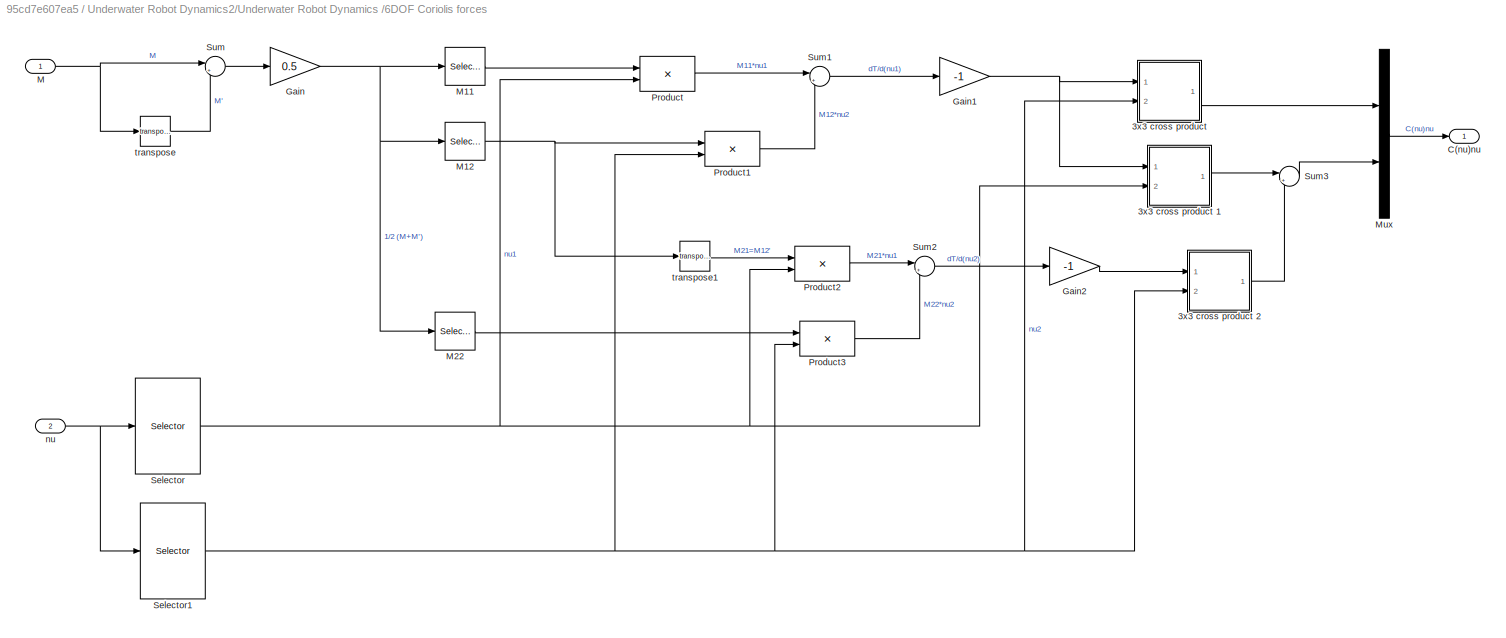
BLOCK [SubSystem] Underwater Robot Dynamics2/Underwater Robot Dynamics /6DOF Coriolis forces
  Ports = [2, 1]
  RequestExecContextInheritance = off
  Variant = off
BLOCK [SubSystem] Underwater Robot Dynamics2/Underwater Robot Dynamics /6DOF Coriolis forces/3x3 cross product
  Ports = [2, 1]
  RequestExecContextInheritance = off
  Variant = off
BLOCK [SubSystem] Underwater Robot Dynamics2/Underwater Robot Dynamics /6DOF Coriolis forces/3x3 cross product 1
  Ports = [2, 1]
  RequestExecContextInheritance = off
  Variant = off
BLOCK [Product] Underwater Robot Dynamics2/Underwater Robot Dynamics /6DOF Coriolis forces/3x3 cross product 1/Product
  Ports = [2, 1]
  RndMeth = Floor
BLOCK [Product] Underwater Robot Dynamics2/Underwater Robot Dynamics /6DOF Coriolis forces/3x3 cross product 1/Product1
  Ports = [2, 1]
  RndMeth = Floor
BLOCK [Selector] Underwater Robot Dynamics2/Underwater Robot Dynamics /6DOF Coriolis forces/3x3 cross product 1/Selector
  IndexOptions = Index vector (dialog)
  Indices = [2 3 1]
  InputPortWidth = 3
  OutputSizes = 1
  Ports = [1, 1]
BLOCK [Selector] Underwater Robot Dynamics2/Underwater Robot Dynamics /6DOF Coriolis forces/3x3 cross product 1/Selector1
  IndexOptions = Index vector (dialog)
  Indices = [3 1 2]
  InputPortWidth = 3
  OutputSizes = 1
  Ports = [1, 1]
BLOCK [Selector] Underwater Robot Dynamics2/Underwater Robot Dynamics /6DOF Coriolis forces/3x3 cross product 1/Selector2
  IndexOptions = Index vector (dialog)
  Indices = [2 3 1]
  InputPortWidth = 3
  OutputSizes = 1
  Ports = [1, 1]
BLOCK [Selector] Underwater Robot Dynamics2/Underwater Robot Dynamics /6DOF Coriolis forces/3x3 cross product 1/Selector3
  IndexOptions = Index vector (dialog)
  Indices = [3 1 2]
  InputPortWidth = 3
  OutputSizes = 1
  Ports = [1, 1]
BLOCK [Sum] Underwater Robot Dynamics2/Underwater Robot Dynamics /6DOF Coriolis forces/3x3 cross product 1/Sum
  IconShape = round
  Inputs = +|-
  Ports = [2, 1]
BLOCK [Inport] Underwater Robot Dynamics2/Underwater Robot Dynamics /6DOF Coriolis forces/3x3 cross product 1/a
  IconDisplay = Port number
BLOCK [Inport] Underwater Robot Dynamics2/Underwater Robot Dynamics /6DOF Coriolis forces/3x3 cross product 1/b
  IconDisplay = Port number
  Port = 2
BLOCK [Outport] Underwater Robot Dynamics2/Underwater Robot Dynamics /6DOF Coriolis forces/3x3 cross product 1/c
  IconDisplay = Port number
  InitialOutput = 0
BLOCK [SubSystem] Underwater Robot Dynamics2/Underwater Robot Dynamics /6DOF Coriolis forces/3x3 cross product 2
  Ports = [2, 1]
  RequestExecContextInheritance = off
  Variant = off
BLOCK [Product] Underwater Robot Dynamics2/Underwater Robot Dynamics /6DOF Coriolis forces/3x3 cross product 2/Product
  Ports = [2, 1]
  RndMeth = Floor
BLOCK [Product] Underwater Robot Dynamics2/Underwater Robot Dynamics /6DOF Coriolis forces/3x3 cross product 2/Product1
  Ports = [2, 1]
  RndMeth = Floor
BLOCK [Selector] Underwater Robot Dynamics2/Underwater Robot Dynamics /6DOF Coriolis forces/3x3 cross product 2/Selector
  IndexOptions = Index vector (dialog)
  Indices = [2 3 1]
  InputPortWidth = 3
  OutputSizes = 1
  Ports = [1, 1]
BLOCK [Selector] Underwater Robot Dynamics2/Underwater Robot Dynamics /6DOF Coriolis forces/3x3 cross product 2/Selector1
  IndexOptions = Index vector (dialog)
  Indices = [3 1 2]
  InputPortWidth = 3
  OutputSizes = 1
  Ports = [1, 1]
BLOCK [Selector] Underwater Robot Dynamics2/Underwater Robot Dynamics /6DOF Coriolis forces/3x3 cross product 2/Selector2
  IndexOptions = Index vector (dialog)
  Indices = [2 3 1]
  InputPortWidth = 3
  OutputSizes = 1
  Ports = [1, 1]
BLOCK [Selector] Underwater Robot Dynamics2/Underwater Robot Dynamics /6DOF Coriolis forces/3x3 cross product 2/Selector3
  IndexOptions = Index vector (dialog)
  Indices = [3 1 2]
  InputPortWidth = 3
  OutputSizes = 1
  Ports = [1, 1]
BLOCK [Sum] Underwater Robot Dynamics2/Underwater Robot Dynamics /6DOF Coriolis forces/3x3 cross product 2/Sum
  IconShape = round
  Inputs = +|-
  Ports = [2, 1]
BLOCK [Inport] Underwater Robot Dynamics2/Underwater Robot Dynamics /6DOF Coriolis forces/3x3 cross product 2/a
  IconDisplay = Port number
BLOCK [Inport] Underwater Robot Dynamics2/Underwater Robot Dynamics /6DOF Coriolis forces/3x3 cross product 2/b
  IconDisplay = Port number
  Port = 2
BLOCK [Outport] Underwater Robot Dynamics2/Underwater Robot Dynamics /6DOF Coriolis forces/3x3 cross product 2/c
  IconDisplay = Port number
  InitialOutput = 0
BLOCK [Product] Underwater Robot Dynamics2/Underwater Robot Dynamics /6DOF Coriolis forces/3x3 cross product/Product
  Ports = [2, 1]
  RndMeth = Floor
BLOCK [Product] Underwater Robot Dynamics2/Underwater Robot Dynamics /6DOF Coriolis forces/3x3 cross product/Product1
  Ports = [2, 1]
  RndMeth = Floor
BLOCK [Selector] Underwater Robot Dynamics2/Underwater Robot Dynamics /6DOF Coriolis forces/3x3 cross product/Selector
  IndexOptions = Index vector (dialog)
  Indices = [2 3 1]
  InputPortWidth = 3
  OutputSizes = 1
  Ports = [1, 1]
BLOCK [Selector] Underwater Robot Dynamics2/Underwater Robot Dynamics /6DOF Coriolis forces/3x3 cross product/Selector1
  IndexOptions = Index vector (dialog)
  Indices = [3 1 2]
  InputPortWidth = 3
  OutputSizes = 1
  Ports = [1, 1]
BLOCK [Selector] Underwater Robot Dynamics2/Underwater Robot Dynamics /6DOF Coriolis forces/3x3 cross product/Selector2
  IndexOptions = Index vector (dialog)
  Indices = [2 3 1]
  InputPortWidth = 3
  OutputSizes = 1
  Ports = [1, 1]
BLOCK [Selector] Underwater Robot Dynamics2/Underwater Robot Dynamics /6DOF Coriolis forces/3x3 cross product/Selector3
  IndexOptions = Index vector (dialog)
  Indices = [3 1 2]
  InputPortWidth = 3
  OutputSizes = 1
  Ports = [1, 1]
BLOCK [Sum] Underwater Robot Dynamics2/Underwater Robot Dynamics /6DOF Coriolis forces/3x3 cross product/Sum
  IconShape = round
  Inputs = +|-
  Ports = [2, 1]
BLOCK [Inport] Underwater Robot Dynamics2/Underwater Robot Dynamics /6DOF Coriolis forces/3x3 cross product/a
  IconDisplay = Port number
BLOCK [Inport] Underwater Robot Dynamics2/Underwater Robot Dynamics /6DOF Coriolis forces/3x3 cross product/b
  IconDisplay = Port number
  Port = 2
BLOCK [Outport] Underwater Robot Dynamics2/Underwater Robot Dynamics /6DOF Coriolis forces/3x3 cross product/c
  IconDisplay = Port number
  InitialOutput = 0
BLOCK [Outport] Underwater Robot Dynamics2/Underwater Robot Dynamics /6DOF Coriolis forces/C(nu)nu
  IconDisplay = Port number
BLOCK [Gain] Underwater Robot Dynamics2/Underwater Robot Dynamics /6DOF Coriolis forces/Gain
  Gain = 0.5
BLOCK [Gain] Underwater Robot Dynamics2/Underwater Robot Dynamics /6DOF Coriolis forces/Gain1
  Gain = -1
BLOCK [Gain] Underwater Robot Dynamics2/Underwater Robot Dynamics /6DOF Coriolis forces/Gain2
  Gain = -1
BLOCK [Inport] Underwater Robot Dynamics2/Underwater Robot Dynamics /6DOF Coriolis forces/M
  IconDisplay = Port number
BLOCK [Selector] Underwater Robot Dynamics2/Underwater Robot Dynamics /6DOF Coriolis forces/M11
  IndexOptions = Index vector (dialog),Index vector (dialog)
  Indices = [1 2 3],[1 2 3]
  InputPortWidth = 3
  NumberOfDimensions = 2
  OutputSizes = 1
  Ports = [1, 1]
BLOCK [Selector] Underwater Robot Dynamics2/Underwater Robot Dynamics /6DOF Coriolis forces/M12
  IndexOptions = Index vector (dialog),Index vector (dialog)
  Indices = [1 2 3],[4 5 6]
  InputPortWidth = 3
  NumberOfDimensions = 2
  OutputSizes = 1
  Ports = [1, 1]
BLOCK [Selector] Underwater Robot Dynamics2/Underwater Robot Dynamics /6DOF Coriolis forces/M22
  IndexOptions = Index vector (dialog),Index vector (dialog)
  Indices = [4 5 6],[4 5 6]
  InputPortWidth = 3
  NumberOfDimensions = 2
  OutputSizes = 1
  Ports = [1, 1]
BLOCK [Mux] Underwater Robot Dynamics2/Underwater Robot Dynamics /6DOF Coriolis forces/Mux
  DisplayOption = bar
  Inputs = 2
  Ports = [2, 1]
BLOCK [Product] Underwater Robot Dynamics2/Underwater Robot Dynamics /6DOF Coriolis forces/Product
  InputSameDT = off
  Multiplication = Matrix(*)
  Ports = [2, 1]
  RndMeth = Floor
BLOCK [Product] Underwater Robot Dynamics2/Underwater Robot Dynamics /6DOF Coriolis forces/Product1
  InputSameDT = off
  Multiplication = Matrix(*)
  Ports = [2, 1]
  RndMeth = Floor
BLOCK [Product] Underwater Robot Dynamics2/Underwater Robot Dynamics /6DOF Coriolis forces/Product2
  InputSameDT = off
  Multiplication = Matrix(*)
  Ports = [2, 1]
  RndMeth = Floor
BLOCK [Product] Underwater Robot Dynamics2/Underwater Robot Dynamics /6DOF Coriolis forces/Product3
  InputSameDT = off
  Multiplication = Matrix(*)
  Ports = [2, 1]
  RndMeth = Floor
BLOCK [Selector] Underwater Robot Dynamics2/Underwater Robot Dynamics /6DOF Coriolis forces/Selector
  IndexOptions = Index vector (dialog)
  Indices = [1 2 3]
  InputPortWidth = 6
  OutputSizes = 1
  Ports = [1, 1]
BLOCK [Selector] Underwater Robot Dynamics2/Underwater Robot Dynamics /6DOF Coriolis forces/Selector1
  IndexOptions = Index vector (dialog)
  Indices = [4 5 6]
  InputPortWidth = 6
  OutputSizes = 1
  Ports = [1, 1]
BLOCK [Sum] Underwater Robot Dynamics2/Underwater Robot Dynamics /6DOF Coriolis forces/Sum
  IconShape = round
  InputSameDT = off
  Inputs = |++
  OutDataTypeStr = Inherit: Inherit via internal rule
  Ports = [2, 1]
BLOCK [Sum] Underwater Robot Dynamics2/Underwater Robot Dynamics /6DOF Coriolis forces/Sum1
  IconShape = round
  InputSameDT = off
  Inputs = |++
  OutDataTypeStr = Inherit: Inherit via internal rule
  Ports = [2, 1]
BLOCK [Sum] Underwater Robot Dynamics2/Underwater Robot Dynamics /6DOF Coriolis forces/Sum2
  IconShape = round
  InputSameDT = off
  Inputs = |++
  OutDataTypeStr = Inherit: Inherit via internal rule
  Ports = [2, 1]
BLOCK [Sum] Underwater Robot Dynamics2/Underwater Robot Dynamics /6DOF Coriolis forces/Sum3
  IconShape = round
  InputSameDT = off
  Inputs = |++
  OutDataTypeStr = Inherit: Inherit via internal rule
  Ports = [2, 1]
BLOCK [Inport] Underwater Robot Dynamics2/Underwater Robot Dynamics /6DOF Coriolis forces/nu
  IconDisplay = Port number
  Port = 2
BLOCK [Math] Underwater Robot Dynamics2/Underwater Robot Dynamics /6DOF Coriolis forces/transpose
  Operator = transpose
  Ports = [1, 1]
BLOCK [Math] Underwater Robot Dynamics2/Underwater Robot Dynamics /6DOF Coriolis forces/transpose1
  Operator = transpose
  Ports = [1, 1]
BLOCK [Constant] Underwater Robot Dynamics2/Underwater Robot Dynamics /M_A
  Value = veh.Ma
BLOCK [Constant] Underwater Robot Dynamics2/Underwater Robot Dynamics /M_RB
  Value = veh.Mrb
BLOCK [Product] Underwater Robot Dynamics2/Underwater Robot Dynamics /Product
  InputSameDT = off
  Inputs = /*
  Multiplication = Matrix(*)
  Ports = [2, 1]
  RndMeth = Floor
BLOCK [Scope] Underwater Robot Dynamics2/Underwater Robot Dynamics /Scope
  NumInputPorts = 1
  Ports = [1]
  ScopeSpecificationString = Simulink.scopes.TimeScopeBlockCfg('CurrentConfiguration', extmgr.ConfigurationSet(extmgr.Configuration('Core','General UI',true),extmgr.Configuration('Core','Source UI',true),extmgr.Configuration('Sources','WiredSimulink',true,'DataLoggingVariableName','ScopeData3'),extmgr.Configuration('Visuals','Time Domain',true,'SerializedDisplays',{struct('MinYLimReal','-1.00000','MaxYLimReal','1.00000','YLab...<+1560ch>
BLOCK [Selector] Underwater Robot Dynamics2/Underwater Robot Dynamics /Selector1
  IndexOptions = Index vector (dialog)
  Indices = [1 2 3]
  InputPortWidth = 6
  OutputSizes = 1
  Ports = [1, 1]
BLOCK [Selector] Underwater Robot Dynamics2/Underwater Robot Dynamics /Selector2
  IndexOptions = Index vector (dialog)
  Indices = [4 5 6]
  InputPortWidth = 6
  OutputSizes = 1
  Ports = [1, 1]
BLOCK [Sum] Underwater Robot Dynamics2/Underwater Robot Dynamics /Sum
  IconShape = round
  InputSameDT = off
  Inputs = |+-
  OutDataTypeStr = Inherit: Inherit via internal rule
  Ports = [2, 1]
  SaturateOnIntegerOverflow = off
BLOCK [Sum] Underwater Robot Dynamics2/Underwater Robot Dynamics /Sum2
  InputSameDT = off
  OutDataTypeStr = Inherit: Inherit via internal rule
  Ports = [2, 1]
BLOCK [Integrator] Underwater Robot Dynamics2/Underwater Robot Dynamics /Velocity Integrator
  Ports = [1, 1]
BLOCK [Inport] Underwater Robot Dynamics2/Underwater Robot Dynamics /tau_b
  IconDisplay = Port number
BLOCK [Outport] Underwater Robot Dynamics2/Underwater Robot Dynamics /v
  IconDisplay = Port number
BLOCK [Outport] Underwater Robot Dynamics2/Underwater Robot Dynamics /w_ib
  IconDisplay = Port number
  Port = 2
BLOCK [Outport] Underwater Robot Dynamics2/eta
  IconDisplay = Port number
BLOCK [Outport] Underwater Robot Dynamics2/nu
  IconDisplay = Port number
  Port = 2
BLOCK [SubSystem] Underwater Robot Dynamics2/transform to inertial world frame {i}
  Ports = [2, 1]
  RequestExecContextInheritance = off
  Variant = off
BLOCK [Product] Underwater Robot Dynamics2/transform to inertial world frame {i}/Product
  Multiplication = Matrix(*)
  Ports = [2, 1]
  RndMeth = Floor
BLOCK [Reshape] Underwater Robot Dynamics2/transform to inertial world frame {i}/Reshape1
  OutputDimensionality = Column vector (2-D)
  Ports = [1, 1]
BLOCK [Reshape] Underwater Robot Dynamics2/transform to inertial world frame {i}/Reshape2
  Ports = [1, 1]
BLOCK [Outport] Underwater Robot Dynamics2/transform to inertial world frame {i}/Ve
  IconDisplay = Port number
BLOCK [Inport] Underwater Robot Dynamics2/transform to inertial world frame {i}/linear velocity transformation matrix
  IconDisplay = Port number
  Port = 2
BLOCK [Inport] Underwater Robot Dynamics2/transform to inertial world frame {i}/v
  IconDisplay = Port number
BLOCK [Inport] Underwater Robot Dynamics2/u_T1
  IconDisplay = Port number
BLOCK [Inport] Underwater Robot Dynamics2/u_T2
  IconDisplay = Port number
  Port = 2
BLOCK [Inport] Underwater Robot Dynamics2/u_T3
  IconDisplay = Port number
  Port = 3
BLOCK [Inport] Underwater Robot Dynamics2/u_T4
  IconDisplay = Port number
  Port = 4
BLOCK [Inport] Underwater Robot Dynamics2/u_T5
  IconDisplay = Port number
  Port = 5
BLOCK [Inport] Underwater Robot Dynamics2/u_T6
  IconDisplay = Port number
  Port = 6
BLOCK [Outport] eta
  IconDisplay = Port number
BLOCK [Outport] nu
  IconDisplay = Port number
  Port = 2
BLOCK [Inport] u_T1
  IconDisplay = Port number
BLOCK [Inport] u_T2
  IconDisplay = Port number
  Port = 2
BLOCK [Inport] u_T3
  IconDisplay = Port number
  Port = 3
BLOCK [Inport] u_T4
  IconDisplay = Port number
  Port = 4
BLOCK [Inport] u_T5
  IconDisplay = Port number
  Port = 5
BLOCK [Inport] u_T6
  IconDisplay = Port number
  Port = 6
LINE Underwater Robot Dynamics/ForceMomentTransfer/Mux:1 -> Underwater Robot Dynamics/ForceMomentTransfer/tau_b:1
LINE Underwater Robot Dynamics/ForceMomentTransfer/Total Force/Add:1 -> Underwater Robot Dynamics/ForceMomentTransfer/Total Force/F_T:1
LINE Underwater Robot Dynamics/ForceMomentTransfer/Total Force/Gain1:1 -> Underwater Robot Dynamics/ForceMomentTransfer/Total Force/Add:2
LINE Underwater Robot Dynamics/ForceMomentTransfer/Total Force/Gain2:1 -> Underwater Robot Dynamics/ForceMomentTransfer/Total Force/Add:3
LINE Underwater Robot Dynamics/ForceMomentTransfer/Total Force/Gain3:1 -> Underwater Robot Dynamics/ForceMomentTransfer/Total Force/Add:4
LINE Underwater Robot Dynamics/ForceMomentTransfer/Total Force/Gain4:1 -> Underwater Robot Dynamics/ForceMomentTransfer/Total Force/Add:5
LINE Underwater Robot Dynamics/ForceMomentTransfer/Total Force/Gain5:1 -> Underwater Robot Dynamics/ForceMomentTransfer/Total Force/Add:6
LINE Underwater Robot Dynamics/ForceMomentTransfer/Total Force/Gain:1 -> Underwater Robot Dynamics/ForceMomentTransfer/Total Force/Add:1
LINE Underwater Robot Dynamics/ForceMomentTransfer/Total Force/u_T1:1 -> Underwater Robot Dynamics/ForceMomentTransfer/Total Force/Gain:1
LINE Underwater Robot Dynamics/ForceMomentTransfer/Total Force/u_T2:1 -> Underwater Robot Dynamics/ForceMomentTransfer/Total Force/Gain1:1
LINE Underwater Robot Dynamics/ForceMomentTransfer/Total Force/u_T3:1 -> Underwater Robot Dynamics/ForceMomentTransfer/Total Force/Gain2:1
LINE Underwater Robot Dynamics/ForceMomentTransfer/Total Force/u_T4:1 -> Underwater Robot Dynamics/ForceMomentTransfer/Total Force/Gain3:1
LINE Underwater Robot Dynamics/ForceMomentTransfer/Total Force/u_T5:1 -> Underwater Robot Dynamics/ForceMomentTransfer/Total Force/Gain4:1
LINE Underwater Robot Dynamics/ForceMomentTransfer/Total Force/u_T6:1 -> Underwater Robot Dynamics/ForceMomentTransfer/Total Force/Gain5:1
LINE Underwater Robot Dynamics/ForceMomentTransfer/Total Force:1 -> Underwater Robot Dynamics/ForceMomentTransfer/Mux:1
LINE Underwater Robot Dynamics/ForceMomentTransfer/Total Moment/Add:1 -> Underwater Robot Dynamics/ForceMomentTransfer/Total Moment/m_T:1
LINE Underwater Robot Dynamics/ForceMomentTransfer/Total Moment/Force Calculation /Gain1:1 -> Underwater Robot Dynamics/ForceMomentTransfer/Total Moment/Force Calculation /F_T2:1
LINE Underwater Robot Dynamics/ForceMomentTransfer/Total Moment/Force Calculation /Gain2:1 -> Underwater Robot Dynamics/ForceMomentTransfer/Total Moment/Force Calculation /F_T3:1
LINE Underwater Robot Dynamics/ForceMomentTransfer/Total Moment/Force Calculation /Gain3:1 -> Underwater Robot Dynamics/ForceMomentTransfer/Total Moment/Force Calculation /F_T4:1
LINE Underwater Robot Dynamics/ForceMomentTransfer/Total Moment/Force Calculation /Gain4:1 -> Underwater Robot Dynamics/ForceMomentTransfer/Total Moment/Force Calculation /F_T5:1
LINE Underwater Robot Dynamics/ForceMomentTransfer/Total Moment/Force Calculation /Gain5:1 -> Underwater Robot Dynamics/ForceMomentTransfer/Total Moment/Force Calculation /F_T6:1
LINE Underwater Robot Dynamics/ForceMomentTransfer/Total Moment/Force Calculation /Gain:1 -> Underwater Robot Dynamics/ForceMomentTransfer/Total Moment/Force Calculation /F_T1:1
LINE Underwater Robot Dynamics/ForceMomentTransfer/Total Moment/Force Calculation /u_T1:1 -> Underwater Robot Dynamics/ForceMomentTransfer/Total Moment/Force Calculation /Gain:1
LINE Underwater Robot Dynamics/ForceMomentTransfer/Total Moment/Force Calculation /u_T2:1 -> Underwater Robot Dynamics/ForceMomentTransfer/Total Moment/Force Calculation /Gain1:1
LINE Underwater Robot Dynamics/ForceMomentTransfer/Total Moment/Force Calculation /u_T3:1 -> Underwater Robot Dynamics/ForceMomentTransfer/Total Moment/Force Calculation /Gain2:1
LINE Underwater Robot Dynamics/ForceMomentTransfer/Total Moment/Force Calculation /u_T4:1 -> Underwater Robot Dynamics/ForceMomentTransfer/Total Moment/Force Calculation /Gain3:1
LINE Underwater Robot Dynamics/ForceMomentTransfer/Total Moment/Force Calculation /u_T5:1 -> Underwater Robot Dynamics/ForceMomentTransfer/Total Moment/Force Calculation /Gain4:1
LINE Underwater Robot Dynamics/ForceMomentTransfer/Total Moment/Force Calculation /u_T6:1 -> Underwater Robot Dynamics/ForceMomentTransfer/Total Moment/Force Calculation /Gain5:1
NET Underwater Robot Dynamics/ForceMomentTransfer/Total Moment/Force Calculation :1 -> Underwater Robot Dynamics/ForceMomentTransfer/Total Moment/Forcemoment:1, Underwater Robot Dynamics/ForceMomentTransfer/Total Moment/RotationMoment:1
NET Underwater Robot Dynamics/ForceMomentTransfer/Total Moment/Force Calculation :2 -> Underwater Robot Dynamics/ForceMomentTransfer/Total Moment/Forcemoment:2, Underwater Robot Dynamics/ForceMomentTransfer/Total Moment/RotationMoment:2
NET Underwater Robot Dynamics/ForceMomentTransfer/Total Moment/Force Calculation :3 -> Underwater Robot Dynamics/ForceMomentTransfer/Total Moment/Forcemoment:3, Underwater Robot Dynamics/ForceMomentTransfer/Total Moment/RotationMoment:3
NET Underwater Robot Dynamics/ForceMomentTransfer/Total Moment/Force Calculation :4 -> Underwater Robot Dynamics/ForceMomentTransfer/Total Moment/Forcemoment:4, Underwater Robot Dynamics/ForceMomentTransfer/Total Moment/RotationMoment:4
NET Underwater Robot Dynamics/ForceMomentTransfer/Total Moment/Force Calculation :5 -> Underwater Robot Dynamics/ForceMomentTransfer/Total Moment/Forcemoment:5, Underwater Robot Dynamics/ForceMomentTransfer/Total Moment/RotationMoment:5
NET Underwater Robot Dynamics/ForceMomentTransfer/Total Moment/Force Calculation :6 -> Underwater Robot Dynamics/ForceMomentTransfer/Total Moment/Forcemoment:6, Underwater Robot Dynamics/ForceMomentTransfer/Total Moment/RotationMoment:6
LINE Underwater Robot Dynamics/ForceMomentTransfer/Total Moment/Forcemoment/3x3 Cross Product1:1 -> Underwater Robot Dynamics/ForceMomentTransfer/Total Moment/Forcemoment/m_T2:1
LINE Underwater Robot Dynamics/ForceMomentTransfer/Total Moment/Forcemoment/3x3 Cross Product2:1 -> Underwater Robot Dynamics/ForceMomentTransfer/Total Moment/Forcemoment/m_T3:1
LINE Underwater Robot Dynamics/ForceMomentTransfer/Total Moment/Forcemoment/3x3 Cross Product3:1 -> Underwater Robot Dynamics/ForceMomentTransfer/Total Moment/Forcemoment/m_T4:1
LINE Underwater Robot Dynamics/ForceMomentTransfer/Total Moment/Forcemoment/3x3 Cross Product4:1 -> Underwater Robot Dynamics/ForceMomentTransfer/Total Moment/Forcemoment/m_T5:1
LINE Underwater Robot Dynamics/ForceMomentTransfer/Total Moment/Forcemoment/3x3 Cross Product5:1 -> Underwater Robot Dynamics/ForceMomentTransfer/Total Moment/Forcemoment/m_T6:1
LINE Underwater Robot Dynamics/ForceMomentTransfer/Total Moment/Forcemoment/3x3 Cross Product:1 -> Underwater Robot Dynamics/ForceMomentTransfer/Total Moment/Forcemoment/m_T1:1
LINE Underwater Robot Dynamics/ForceMomentTransfer/Total Moment/Forcemoment/Constant1:1 -> Underwater Robot Dynamics/ForceMomentTransfer/Total Moment/Forcemoment/3x3 Cross Product1:1
LINE Underwater Robot Dynamics/ForceMomentTransfer/Total Moment/Forcemoment/Constant2:1 -> Underwater Robot Dynamics/ForceMomentTransfer/Total Moment/Forcemoment/3x3 Cross Product2:1
LINE Underwater Robot Dynamics/ForceMomentTransfer/Total Moment/Forcemoment/Constant3:1 -> Underwater Robot Dynamics/ForceMomentTransfer/Total Moment/Forcemoment/3x3 Cross Product3:1
LINE Underwater Robot Dynamics/ForceMomentTransfer/Total Moment/Forcemoment/Constant4:1 -> Underwater Robot Dynamics/ForceMomentTransfer/Total Moment/Forcemoment/3x3 Cross Product4:1
LINE Underwater Robot Dynamics/ForceMomentTransfer/Total Moment/Forcemoment/Constant5:1 -> Underwater Robot Dynamics/ForceMomentTransfer/Total Moment/Forcemoment/3x3 Cross Product5:1
LINE Underwater Robot Dynamics/ForceMomentTransfer/Total Moment/Forcemoment/Constant:1 -> Underwater Robot Dynamics/ForceMomentTransfer/Total Moment/Forcemoment/3x3 Cross Product:1
LINE Underwater Robot Dynamics/ForceMomentTransfer/Total Moment/Forcemoment/F_T1:1 -> Underwater Robot Dynamics/ForceMomentTransfer/Total Moment/Forcemoment/3x3 Cross Product:2
LINE Underwater Robot Dynamics/ForceMomentTransfer/Total Moment/Forcemoment/F_T2:1 -> Underwater Robot Dynamics/ForceMomentTransfer/Total Moment/Forcemoment/3x3 Cross Product1:2
LINE Underwater Robot Dynamics/ForceMomentTransfer/Total Moment/Forcemoment/F_T3:1 -> Underwater Robot Dynamics/ForceMomentTransfer/Total Moment/Forcemoment/3x3 Cross Product2:2
LINE Underwater Robot Dynamics/ForceMomentTransfer/Total Moment/Forcemoment/F_T4:1 -> Underwater Robot Dynamics/ForceMomentTransfer/Total Moment/Forcemoment/3x3 Cross Product3:2
LINE Underwater Robot Dynamics/ForceMomentTransfer/Total Moment/Forcemoment/F_T5:1 -> Underwater Robot Dynamics/ForceMomentTransfer/Total Moment/Forcemoment/3x3 Cross Product4:2
LINE Underwater Robot Dynamics/ForceMomentTransfer/Total Moment/Forcemoment/F_T6:1 -> Underwater Robot Dynamics/ForceMomentTransfer/Total Moment/Forcemoment/3x3 Cross Product5:2
LINE Underwater Robot Dynamics/ForceMomentTransfer/Total Moment/Forcemoment:1 -> Underwater Robot Dynamics/ForceMomentTransfer/Total Moment/Sum:2
LINE Underwater Robot Dynamics/ForceMomentTransfer/Total Moment/Forcemoment:2 -> Underwater Robot Dynamics/ForceMomentTransfer/Total Moment/Sum1:2
LINE Underwater Robot Dynamics/ForceMomentTransfer/Total Moment/Forcemoment:3 -> Underwater Robot Dynamics/ForceMomentTransfer/Total Moment/Sum2:2
LINE Underwater Robot Dynamics/ForceMomentTransfer/Total Moment/Forcemoment:4 -> Underwater Robot Dynamics/ForceMomentTransfer/Total Moment/Sum3:2
LINE Underwater Robot Dynamics/ForceMomentTransfer/Total Moment/Forcemoment:5 -> Underwater Robot Dynamics/ForceMomentTransfer/Total Moment/Sum4:2
LINE Underwater Robot Dynamics/ForceMomentTransfer/Total Moment/Forcemoment:6 -> Underwater Robot Dynamics/ForceMomentTransfer/Total Moment/Sum5:2
LINE Underwater Robot Dynamics/ForceMomentTransfer/Total Moment/RotationMoment/F_T1:1 -> Underwater Robot Dynamics/ForceMomentTransfer/Total Moment/RotationMoment/Gain:1
LINE Underwater Robot Dynamics/ForceMomentTransfer/Total Moment/RotationMoment/F_T2:1 -> Underwater Robot Dynamics/ForceMomentTransfer/Total Moment/RotationMoment/Gain1:1
LINE Underwater Robot Dynamics/ForceMomentTransfer/Total Moment/RotationMoment/F_T3:1 -> Underwater Robot Dynamics/ForceMomentTransfer/Total Moment/RotationMoment/Gain2:1
LINE Underwater Robot Dynamics/ForceMomentTransfer/Total Moment/RotationMoment/F_T4:1 -> Underwater Robot Dynamics/ForceMomentTransfer/Total Moment/RotationMoment/Gain3:1
LINE Underwater Robot Dynamics/ForceMomentTransfer/Total Moment/RotationMoment/F_T5:1 -> Underwater Robot Dynamics/ForceMomentTransfer/Total Moment/RotationMoment/Gain4:1
LINE Underwater Robot Dynamics/ForceMomentTransfer/Total Moment/RotationMoment/F_T6:1 -> Underwater Robot Dynamics/ForceMomentTransfer/Total Moment/RotationMoment/Gain5:1
LINE Underwater Robot Dynamics/ForceMomentTransfer/Total Moment/RotationMoment/Gain1:1 -> Underwater Robot Dynamics/ForceMomentTransfer/Total Moment/RotationMoment/m_T2:1
LINE Underwater Robot Dynamics/ForceMomentTransfer/Total Moment/RotationMoment/Gain2:1 -> Underwater Robot Dynamics/ForceMomentTransfer/Total Moment/RotationMoment/m_T3:1
LINE Underwater Robot Dynamics/ForceMomentTransfer/Total Moment/RotationMoment/Gain3:1 -> Underwater Robot Dynamics/ForceMomentTransfer/Total Moment/RotationMoment/m_T4:1
LINE Underwater Robot Dynamics/ForceMomentTransfer/Total Moment/RotationMoment/Gain4:1 -> Underwater Robot Dynamics/ForceMomentTransfer/Total Moment/RotationMoment/m_T5:1
LINE Underwater Robot Dynamics/ForceMomentTransfer/Total Moment/RotationMoment/Gain5:1 -> Underwater Robot Dynamics/ForceMomentTransfer/Total Moment/RotationMoment/m_T6:1
LINE Underwater Robot Dynamics/ForceMomentTransfer/Total Moment/RotationMoment/Gain:1 -> Underwater Robot Dynamics/ForceMomentTransfer/Total Moment/RotationMoment/m_T1:1
LINE Underwater Robot Dynamics/ForceMomentTransfer/Total Moment/RotationMoment:1 -> Underwater Robot Dynamics/ForceMomentTransfer/Total Moment/Sum:1
LINE Underwater Robot Dynamics/ForceMomentTransfer/Total Moment/RotationMoment:2 -> Underwater Robot Dynamics/ForceMomentTransfer/Total Moment/Sum1:1
LINE Underwater Robot Dynamics/ForceMomentTransfer/Total Moment/RotationMoment:3 -> Underwater Robot Dynamics/ForceMomentTransfer/Total Moment/Sum2:1
LINE Underwater Robot Dynamics/ForceMomentTransfer/Total Moment/RotationMoment:4 -> Underwater Robot Dynamics/ForceMomentTransfer/Total Moment/Sum3:1
LINE Underwater Robot Dynamics/ForceMomentTransfer/Total Moment/RotationMoment:5 -> Underwater Robot Dynamics/ForceMomentTransfer/Total Moment/Sum4:1
LINE Underwater Robot Dynamics/ForceMomentTransfer/Total Moment/RotationMoment:6 -> Underwater Robot Dynamics/ForceMomentTransfer/Total Moment/Sum5:1
LINE Underwater Robot Dynamics/ForceMomentTransfer/Total Moment/Sum1:1 -> Underwater Robot Dynamics/ForceMomentTransfer/Total Moment/Add:2
LINE Underwater Robot Dynamics/ForceMomentTransfer/Total Moment/Sum2:1 -> Underwater Robot Dynamics/ForceMomentTransfer/Total Moment/Add:3
LINE Underwater Robot Dynamics/ForceMomentTransfer/Total Moment/Sum3:1 -> Underwater Robot Dynamics/ForceMomentTransfer/Total Moment/Add:4
LINE Underwater Robot Dynamics/ForceMomentTransfer/Total Moment/Sum4:1 -> Underwater Robot Dynamics/ForceMomentTransfer/Total Moment/Add:5
LINE Underwater Robot Dynamics/ForceMomentTransfer/Total Moment/Sum5:1 -> Underwater Robot Dynamics/ForceMomentTransfer/Total Moment/Add:6
LINE Underwater Robot Dynamics/ForceMomentTransfer/Total Moment/Sum:1 -> Underwater Robot Dynamics/ForceMomentTransfer/Total Moment/Add:1
LINE Underwater Robot Dynamics/ForceMomentTransfer/Total Moment/u_T1:1 -> Underwater Robot Dynamics/ForceMomentTransfer/Total Moment/Force Calculation :1
LINE Underwater Robot Dynamics/ForceMomentTransfer/Total Moment/u_T2:1 -> Underwater Robot Dynamics/ForceMomentTransfer/Total Moment/Force Calculation :2
LINE Underwater Robot Dynamics/ForceMomentTransfer/Total Moment/u_T3:1 -> Underwater Robot Dynamics/ForceMomentTransfer/Total Moment/Force Calculation :3
LINE Underwater Robot Dynamics/ForceMomentTransfer/Total Moment/u_T4:1 -> Underwater Robot Dynamics/ForceMomentTransfer/Total Moment/Force Calculation :4
LINE Underwater Robot Dynamics/ForceMomentTransfer/Total Moment/u_T5:1 -> Underwater Robot Dynamics/ForceMomentTransfer/Total Moment/Force Calculation :5
LINE Underwater Robot Dynamics/ForceMomentTransfer/Total Moment/u_T6:1 -> Underwater Robot Dynamics/ForceMomentTransfer/Total Moment/Force Calculation :6
LINE Underwater Robot Dynamics/ForceMomentTransfer/Total Moment:1 -> Underwater Robot Dynamics/ForceMomentTransfer/Mux:2
NET Underwater Robot Dynamics/ForceMomentTransfer/u_T1:1 -> Underwater Robot Dynamics/ForceMomentTransfer/Total Force:1, Underwater Robot Dynamics/ForceMomentTransfer/Total Moment:1
NET Underwater Robot Dynamics/ForceMomentTransfer/u_T2:1 -> Underwater Robot Dynamics/ForceMomentTransfer/Total Force:2, Underwater Robot Dynamics/ForceMomentTransfer/Total Moment:2
NET Underwater Robot Dynamics/ForceMomentTransfer/u_T3:1 -> Underwater Robot Dynamics/ForceMomentTransfer/Total Force:3, Underwater Robot Dynamics/ForceMomentTransfer/Total Moment:3
NET Underwater Robot Dynamics/ForceMomentTransfer/u_T4:1 -> Underwater Robot Dynamics/ForceMomentTransfer/Total Force:4, Underwater Robot Dynamics/ForceMomentTransfer/Total Moment:4
NET Underwater Robot Dynamics/ForceMomentTransfer/u_T5:1 -> Underwater Robot Dynamics/ForceMomentTransfer/Total Force:5, Underwater Robot Dynamics/ForceMomentTransfer/Total Moment:5
NET Underwater Robot Dynamics/ForceMomentTransfer/u_T6:1 -> Underwater Robot Dynamics/ForceMomentTransfer/Total Force:6, Underwater Robot Dynamics/ForceMomentTransfer/Total Moment:6
LINE Underwater Robot Dynamics/ForceMomentTransfer:1 -> Underwater Robot Dynamics/Underwater Robot Dynamics :1
LINE Underwater Robot Dynamics/Mux1:1 -> Underwater Robot Dynamics/nu:1
LINE Underwater Robot Dynamics/Mux:1 -> Underwater Robot Dynamics/eta:1
LINE Underwater Robot Dynamics/Position Integrator(x,y,z):1 -> Underwater Robot Dynamics/Mux:1
LINE Underwater Robot Dynamics/Subsystem/Rotation Angles to Direction Cosine Matrix:1 -> Underwater Robot Dynamics/Subsystem/DCM:1
LINE Underwater Robot Dynamics/Subsystem/Selector:1 -> Underwater Robot Dynamics/Subsystem/Rotation Angles to Direction Cosine Matrix:1
LINE Underwater Robot Dynamics/Subsystem/p q r :1 -> Underwater Robot Dynamics/Subsystem/phidot thetadot psidot:1
NET Underwater Robot Dynamics/Subsystem/phi theta psi:1 -> Underwater Robot Dynamics/Subsystem/Euler:1, Underwater Robot Dynamics/Subsystem/Selector:1, Underwater Robot Dynamics/Subsystem/phidot thetadot psidot:2
LINE Underwater Robot Dynamics/Subsystem/phidot thetadot psidot:1 -> Underwater Robot Dynamics/Subsystem/phi theta psi:1
LINE Underwater Robot Dynamics/Subsystem:1 -> Underwater Robot Dynamics/Transpose:1
LINE Underwater Robot Dynamics/Subsystem:2 -> Underwater Robot Dynamics/Mux:2
LINE Underwater Robot Dynamics/Transpose:1 -> Underwater Robot Dynamics/transform to inertial world frame {i}:2
LINE Underwater Robot Dynamics/Underwater Robot Dynamics /6DOF Coriolis forces/3x3 cross product 1/Product1:1 -> Underwater Robot Dynamics/Underwater Robot Dynamics /6DOF Coriolis forces/3x3 cross product 1/Sum:2
LINE Underwater Robot Dynamics/Underwater Robot Dynamics /6DOF Coriolis forces/3x3 cross product 1/Product:1 -> Underwater Robot Dynamics/Underwater Robot Dynamics /6DOF Coriolis forces/3x3 cross product 1/Sum:1
LINE Underwater Robot Dynamics/Underwater Robot Dynamics /6DOF Coriolis forces/3x3 cross product 1/Selector1:1 -> Underwater Robot Dynamics/Underwater Robot Dynamics /6DOF Coriolis forces/3x3 cross product 1/Product:2
LINE Underwater Robot Dynamics/Underwater Robot Dynamics /6DOF Coriolis forces/3x3 cross product 1/Selector2:1 -> Underwater Robot Dynamics/Underwater Robot Dynamics /6DOF Coriolis forces/3x3 cross product 1/Product1:2
LINE Underwater Robot Dynamics/Underwater Robot Dynamics /6DOF Coriolis forces/3x3 cross product 1/Selector3:1 -> Underwater Robot Dynamics/Underwater Robot Dynamics /6DOF Coriolis forces/3x3 cross product 1/Product1:1
LINE Underwater Robot Dynamics/Underwater Robot Dynamics /6DOF Coriolis forces/3x3 cross product 1/Selector:1 -> Underwater Robot Dynamics/Underwater Robot Dynamics /6DOF Coriolis forces/3x3 cross product 1/Product:1
LINE Underwater Robot Dynamics/Underwater Robot Dynamics /6DOF Coriolis forces/3x3 cross product 1/Sum:1 -> Underwater Robot Dynamics/Underwater Robot Dynamics /6DOF Coriolis forces/3x3 cross product 1/c:1
NET Underwater Robot Dynamics/Underwater Robot Dynamics /6DOF Coriolis forces/3x3 cross product 1/a:1 -> Underwater Robot Dynamics/Underwater Robot Dynamics /6DOF Coriolis forces/3x3 cross product 1/Selector3:1, Underwater Robot Dynamics/Underwater Robot Dynamics /6DOF Coriolis forces/3x3 cross product 1/Selector:1
NET Underwater Robot Dynamics/Underwater Robot Dynamics /6DOF Coriolis forces/3x3 cross product 1/b:1 -> Underwater Robot Dynamics/Underwater Robot Dynamics /6DOF Coriolis forces/3x3 cross product 1/Selector1:1, Underwater Robot Dynamics/Underwater Robot Dynamics /6DOF Coriolis forces/3x3 cross product 1/Selector2:1
LINE Underwater Robot Dynamics/Underwater Robot Dynamics /6DOF Coriolis forces/3x3 cross product 1:1 -> Underwater Robot Dynamics/Underwater Robot Dynamics /6DOF Coriolis forces/Sum3:1
LINE Underwater Robot Dynamics/Underwater Robot Dynamics /6DOF Coriolis forces/3x3 cross product 2/Product1:1 -> Underwater Robot Dynamics/Underwater Robot Dynamics /6DOF Coriolis forces/3x3 cross product 2/Sum:2
LINE Underwater Robot Dynamics/Underwater Robot Dynamics /6DOF Coriolis forces/3x3 cross product 2/Product:1 -> Underwater Robot Dynamics/Underwater Robot Dynamics /6DOF Coriolis forces/3x3 cross product 2/Sum:1
LINE Underwater Robot Dynamics/Underwater Robot Dynamics /6DOF Coriolis forces/3x3 cross product 2/Selector1:1 -> Underwater Robot Dynamics/Underwater Robot Dynamics /6DOF Coriolis forces/3x3 cross product 2/Product:2
LINE Underwater Robot Dynamics/Underwater Robot Dynamics /6DOF Coriolis forces/3x3 cross product 2/Selector2:1 -> Underwater Robot Dynamics/Underwater Robot Dynamics /6DOF Coriolis forces/3x3 cross product 2/Product1:2
LINE Underwater Robot Dynamics/Underwater Robot Dynamics /6DOF Coriolis forces/3x3 cross product 2/Selector3:1 -> Underwater Robot Dynamics/Underwater Robot Dynamics /6DOF Coriolis forces/3x3 cross product 2/Product1:1
LINE Underwater Robot Dynamics/Underwater Robot Dynamics /6DOF Coriolis forces/3x3 cross product 2/Selector:1 -> Underwater Robot Dynamics/Underwater Robot Dynamics /6DOF Coriolis forces/3x3 cross product 2/Product:1
LINE Underwater Robot Dynamics/Underwater Robot Dynamics /6DOF Coriolis forces/3x3 cross product 2/Sum:1 -> Underwater Robot Dynamics/Underwater Robot Dynamics /6DOF Coriolis forces/3x3 cross product 2/c:1
NET Underwater Robot Dynamics/Underwater Robot Dynamics /6DOF Coriolis forces/3x3 cross product 2/a:1 -> Underwater Robot Dynamics/Underwater Robot Dynamics /6DOF Coriolis forces/3x3 cross product 2/Selector3:1, Underwater Robot Dynamics/Underwater Robot Dynamics /6DOF Coriolis forces/3x3 cross product 2/Selector:1
NET Underwater Robot Dynamics/Underwater Robot Dynamics /6DOF Coriolis forces/3x3 cross product 2/b:1 -> Underwater Robot Dynamics/Underwater Robot Dynamics /6DOF Coriolis forces/3x3 cross product 2/Selector1:1, Underwater Robot Dynamics/Underwater Robot Dynamics /6DOF Coriolis forces/3x3 cross product 2/Selector2:1
LINE Underwater Robot Dynamics/Underwater Robot Dynamics /6DOF Coriolis forces/3x3 cross product 2:1 -> Underwater Robot Dynamics/Underwater Robot Dynamics /6DOF Coriolis forces/Sum3:2
LINE Underwater Robot Dynamics/Underwater Robot Dynamics /6DOF Coriolis forces/3x3 cross product/Product1:1 -> Underwater Robot Dynamics/Underwater Robot Dynamics /6DOF Coriolis forces/3x3 cross product/Sum:2
LINE Underwater Robot Dynamics/Underwater Robot Dynamics /6DOF Coriolis forces/3x3 cross product/Product:1 -> Underwater Robot Dynamics/Underwater Robot Dynamics /6DOF Coriolis forces/3x3 cross product/Sum:1
LINE Underwater Robot Dynamics/Underwater Robot Dynamics /6DOF Coriolis forces/3x3 cross product/Selector1:1 -> Underwater Robot Dynamics/Underwater Robot Dynamics /6DOF Coriolis forces/3x3 cross product/Product:2
LINE Underwater Robot Dynamics/Underwater Robot Dynamics /6DOF Coriolis forces/3x3 cross product/Selector2:1 -> Underwater Robot Dynamics/Underwater Robot Dynamics /6DOF Coriolis forces/3x3 cross product/Product1:2
LINE Underwater Robot Dynamics/Underwater Robot Dynamics /6DOF Coriolis forces/3x3 cross product/Selector3:1 -> Underwater Robot Dynamics/Underwater Robot Dynamics /6DOF Coriolis forces/3x3 cross product/Product1:1
LINE Underwater Robot Dynamics/Underwater Robot Dynamics /6DOF Coriolis forces/3x3 cross product/Selector:1 -> Underwater Robot Dynamics/Underwater Robot Dynamics /6DOF Coriolis forces/3x3 cross product/Product:1
LINE Underwater Robot Dynamics/Underwater Robot Dynamics /6DOF Coriolis forces/3x3 cross product/Sum:1 -> Underwater Robot Dynamics/Underwater Robot Dynamics /6DOF Coriolis forces/3x3 cross product/c:1
NET Underwater Robot Dynamics/Underwater Robot Dynamics /6DOF Coriolis forces/3x3 cross product/a:1 -> Underwater Robot Dynamics/Underwater Robot Dynamics /6DOF Coriolis forces/3x3 cross product/Selector3:1, Underwater Robot Dynamics/Underwater Robot Dynamics /6DOF Coriolis forces/3x3 cross product/Selector:1
NET Underwater Robot Dynamics/Underwater Robot Dynamics /6DOF Coriolis forces/3x3 cross product/b:1 -> Underwater Robot Dynamics/Underwater Robot Dynamics /6DOF Coriolis forces/3x3 cross product/Selector1:1, Underwater Robot Dynamics/Underwater Robot Dynamics /6DOF Coriolis forces/3x3 cross product/Selector2:1
LINE Underwater Robot Dynamics/Underwater Robot Dynamics /6DOF Coriolis forces/3x3 cross product:1 -> Underwater Robot Dynamics/Underwater Robot Dynamics /6DOF Coriolis forces/Mux:1
NET Underwater Robot Dynamics/Underwater Robot Dynamics /6DOF Coriolis forces/Gain1:1 -> Underwater Robot Dynamics/Underwater Robot Dynamics /6DOF Coriolis forces/3x3 cross product 1:1, Underwater Robot Dynamics/Underwater Robot Dynamics /6DOF Coriolis forces/3x3 cross product:1
LINE Underwater Robot Dynamics/Underwater Robot Dynamics /6DOF Coriolis forces/Gain2:1 -> Underwater Robot Dynamics/Underwater Robot Dynamics /6DOF Coriolis forces/3x3 cross product 2:1
NET Underwater Robot Dynamics/Underwater Robot Dynamics /6DOF Coriolis forces/Gain:1 -> Underwater Robot Dynamics/Underwater Robot Dynamics /6DOF Coriolis forces/M11:1, Underwater Robot Dynamics/Underwater Robot Dynamics /6DOF Coriolis forces/M12:1, Underwater Robot Dynamics/Underwater Robot Dynamics /6DOF Coriolis forces/M22:1
LINE Underwater Robot Dynamics/Underwater Robot Dynamics /6DOF Coriolis forces/M11:1 -> Underwater Robot Dynamics/Underwater Robot Dynamics /6DOF Coriolis forces/Product:1
NET Underwater Robot Dynamics/Underwater Robot Dynamics /6DOF Coriolis forces/M12:1 -> Underwater Robot Dynamics/Underwater Robot Dynamics /6DOF Coriolis forces/Product1:1, Underwater Robot Dynamics/Underwater Robot Dynamics /6DOF Coriolis forces/transpose1:1
LINE Underwater Robot Dynamics/Underwater Robot Dynamics /6DOF Coriolis forces/M22:1 -> Underwater Robot Dynamics/Underwater Robot Dynamics /6DOF Coriolis forces/Product3:1
NET Underwater Robot Dynamics/Underwater Robot Dynamics /6DOF Coriolis forces/M:1 -> Underwater Robot Dynamics/Underwater Robot Dynamics /6DOF Coriolis forces/Sum:1, Underwater Robot Dynamics/Underwater Robot Dynamics /6DOF Coriolis forces/transpose:1
LINE Underwater Robot Dynamics/Underwater Robot Dynamics /6DOF Coriolis forces/Mux:1 -> Underwater Robot Dynamics/Underwater Robot Dynamics /6DOF Coriolis forces/C(nu)nu:1
LINE Underwater Robot Dynamics/Underwater Robot Dynamics /6DOF Coriolis forces/Product1:1 -> Underwater Robot Dynamics/Underwater Robot Dynamics /6DOF Coriolis forces/Sum1:2
LINE Underwater Robot Dynamics/Underwater Robot Dynamics /6DOF Coriolis forces/Product2:1 -> Underwater Robot Dynamics/Underwater Robot Dynamics /6DOF Coriolis forces/Sum2:1
LINE Underwater Robot Dynamics/Underwater Robot Dynamics /6DOF Coriolis forces/Product3:1 -> Underwater Robot Dynamics/Underwater Robot Dynamics /6DOF Coriolis forces/Sum2:2
LINE Underwater Robot Dynamics/Underwater Robot Dynamics /6DOF Coriolis forces/Product:1 -> Underwater Robot Dynamics/Underwater Robot Dynamics /6DOF Coriolis forces/Sum1:1
NET Underwater Robot Dynamics/Underwater Robot Dynamics /6DOF Coriolis forces/Selector1:1 -> Underwater Robot Dynamics/Underwater Robot Dynamics /6DOF Coriolis forces/3x3 cross product 2:2, Underwater Robot Dynamics/Underwater Robot Dynamics /6DOF Coriolis forces/3x3 cross product:2, Underwater Robot Dynamics/Underwater Robot Dynamics /6DOF Coriolis forces/Product1:2, Underwater Robot Dynamics/Underwater Robot Dynamics /6DOF Coriolis forces/Product3:2
NET Underwater Robot Dynamics/Underwater Robot Dynamics /6DOF Coriolis forces/Selector:1 -> Underwater Robot Dynamics/Underwater Robot Dynamics /6DOF Coriolis forces/3x3 cross product 1:2, Underwater Robot Dynamics/Underwater Robot Dynamics /6DOF Coriolis forces/Product2:2, Underwater Robot Dynamics/Underwater Robot Dynamics /6DOF Coriolis forces/Product:2
LINE Underwater Robot Dynamics/Underwater Robot Dynamics /6DOF Coriolis forces/Sum1:1 -> Underwater Robot Dynamics/Underwater Robot Dynamics /6DOF Coriolis forces/Gain1:1
LINE Underwater Robot Dynamics/Underwater Robot Dynamics /6DOF Coriolis forces/Sum2:1 -> Underwater Robot Dynamics/Underwater Robot Dynamics /6DOF Coriolis forces/Gain2:1
LINE Underwater Robot Dynamics/Underwater Robot Dynamics /6DOF Coriolis forces/Sum3:1 -> Underwater Robot Dynamics/Underwater Robot Dynamics /6DOF Coriolis forces/Mux:2
LINE Underwater Robot Dynamics/Underwater Robot Dynamics /6DOF Coriolis forces/Sum:1 -> Underwater Robot Dynamics/Underwater Robot Dynamics /6DOF Coriolis forces/Gain:1
NET Underwater Robot Dynamics/Underwater Robot Dynamics /6DOF Coriolis forces/nu:1 -> Underwater Robot Dynamics/Underwater Robot Dynamics /6DOF Coriolis forces/Selector1:1, Underwater Robot Dynamics/Underwater Robot Dynamics /6DOF Coriolis forces/Selector:1
LINE Underwater Robot Dynamics/Underwater Robot Dynamics /6DOF Coriolis forces/transpose1:1 -> Underwater Robot Dynamics/Underwater Robot Dynamics /6DOF Coriolis forces/Product2:1
LINE Underwater Robot Dynamics/Underwater Robot Dynamics /6DOF Coriolis forces/transpose:1 -> Underwater Robot Dynamics/Underwater Robot Dynamics /6DOF Coriolis forces/Sum:2
NET Underwater Robot Dynamics/Underwater Robot Dynamics /6DOF Coriolis forces:1 -> Underwater Robot Dynamics/Underwater Robot Dynamics /Scope:1, Underwater Robot Dynamics/Underwater Robot Dynamics /Sum:2
LINE Underwater Robot Dynamics/Underwater Robot Dynamics /M_A:1 -> Underwater Robot Dynamics/Underwater Robot Dynamics /Sum2:2
LINE Underwater Robot Dynamics/Underwater Robot Dynamics /M_RB:1 -> Underwater Robot Dynamics/Underwater Robot Dynamics /Sum2:1
LINE Underwater Robot Dynamics/Underwater Robot Dynamics /Product:1 -> Underwater Robot Dynamics/Underwater Robot Dynamics /Velocity Integrator:1
LINE Underwater Robot Dynamics/Underwater Robot Dynamics /Selector1:1 -> Underwater Robot Dynamics/Underwater Robot Dynamics /v:1
LINE Underwater Robot Dynamics/Underwater Robot Dynamics /Selector2:1 -> Underwater Robot Dynamics/Underwater Robot Dynamics /w_ib:1
NET Underwater Robot Dynamics/Underwater Robot Dynamics /Sum2:1 -> Underwater Robot Dynamics/Underwater Robot Dynamics /6DOF Coriolis forces:1, Underwater Robot Dynamics/Underwater Robot Dynamics /Product:1
LINE Underwater Robot Dynamics/Underwater Robot Dynamics /Sum:1 -> Underwater Robot Dynamics/Underwater Robot Dynamics /Product:2
NET Underwater Robot Dynamics/Underwater Robot Dynamics /Velocity Integrator:1 -> Underwater Robot Dynamics/Underwater Robot Dynamics /6DOF Coriolis forces:2, Underwater Robot Dynamics/Underwater Robot Dynamics /Selector1:1, Underwater Robot Dynamics/Underwater Robot Dynamics /Selector2:1
LINE Underwater Robot Dynamics/Underwater Robot Dynamics /tau_b:1 -> Underwater Robot Dynamics/Underwater Robot Dynamics /Sum:1
NET Underwater Robot Dynamics/Underwater Robot Dynamics :1 -> Underwater Robot Dynamics/Mux1:1, Underwater Robot Dynamics/transform to inertial world frame {i}:1
NET Underwater Robot Dynamics/Underwater Robot Dynamics :2 -> Underwater Robot Dynamics/Mux1:2, Underwater Robot Dynamics/Subsystem:1
LINE Underwater Robot Dynamics/transform to inertial world frame {i}/Product:1 -> Underwater Robot Dynamics/transform to inertial world frame {i}/Reshape2:1
LINE Underwater Robot Dynamics/transform to inertial world frame {i}/Reshape1:1 -> Underwater Robot Dynamics/transform to inertial world frame {i}/Product:2
LINE Underwater Robot Dynamics/transform to inertial world frame {i}/Reshape2:1 -> Underwater Robot Dynamics/transform to inertial world frame {i}/Ve:1
LINE Underwater Robot Dynamics/transform to inertial world frame {i}/linear velocity transformation matrix:1 -> Underwater Robot Dynamics/transform to inertial world frame {i}/Product:1
LINE Underwater Robot Dynamics/transform to inertial world frame {i}/v:1 -> Underwater Robot Dynamics/transform to inertial world frame {i}/Reshape1:1
LINE Underwater Robot Dynamics/transform to inertial world frame {i}:1 -> Underwater Robot Dynamics/Position Integrator(x,y,z):1
LINE Underwater Robot Dynamics/u_T1:1 -> Underwater Robot Dynamics/ForceMomentTransfer:1
LINE Underwater Robot Dynamics/u_T2:1 -> Underwater Robot Dynamics/ForceMomentTransfer:2
LINE Underwater Robot Dynamics/u_T3:1 -> Underwater Robot Dynamics/ForceMomentTransfer:3
LINE Underwater Robot Dynamics/u_T4:1 -> Underwater Robot Dynamics/ForceMomentTransfer:4
LINE Underwater Robot Dynamics/u_T5:1 -> Underwater Robot Dynamics/ForceMomentTransfer:5
LINE Underwater Robot Dynamics/u_T6:1 -> Underwater Robot Dynamics/ForceMomentTransfer:6
LINE Underwater Robot Dynamics2/ForceMomentTransfer/Mux:1 -> Underwater Robot Dynamics2/ForceMomentTransfer/tau_b:1
LINE Underwater Robot Dynamics2/ForceMomentTransfer/Total Force/Add:1 -> Underwater Robot Dynamics2/ForceMomentTransfer/Total Force/F_T:1
LINE Underwater Robot Dynamics2/ForceMomentTransfer/Total Force/Constant1:1 -> Underwater Robot Dynamics2/ForceMomentTransfer/Total Force/Dot Product1:2
LINE Underwater Robot Dynamics2/ForceMomentTransfer/Total Force/Constant2:1 -> Underwater Robot Dynamics2/ForceMomentTransfer/Total Force/Dot Product2:2
LINE Underwater Robot Dynamics2/ForceMomentTransfer/Total Force/Constant3:1 -> Underwater Robot Dynamics2/ForceMomentTransfer/Total Force/Dot Product3:2
LINE Underwater Robot Dynamics2/ForceMomentTransfer/Total Force/Constant4:1 -> Underwater Robot Dynamics2/ForceMomentTransfer/Total Force/Dot Product4:2
LINE Underwater Robot Dynamics2/ForceMomentTransfer/Total Force/Constant5:1 -> Underwater Robot Dynamics2/ForceMomentTransfer/Total Force/Dot Product5:2
LINE Underwater Robot Dynamics2/ForceMomentTransfer/Total Force/Constant:1 -> Underwater Robot Dynamics2/ForceMomentTransfer/Total Force/Dot Product:2
LINE Underwater Robot Dynamics2/ForceMomentTransfer/Total Force/Dot Product1:1 -> Underwater Robot Dynamics2/ForceMomentTransfer/Total Force/Add:2
LINE Underwater Robot Dynamics2/ForceMomentTransfer/Total Force/Dot Product2:1 -> Underwater Robot Dynamics2/ForceMomentTransfer/Total Force/Add:3
LINE Underwater Robot Dynamics2/ForceMomentTransfer/Total Force/Dot Product3:1 -> Underwater Robot Dynamics2/ForceMomentTransfer/Total Force/Add:4
LINE Underwater Robot Dynamics2/ForceMomentTransfer/Total Force/Dot Product4:1 -> Underwater Robot Dynamics2/ForceMomentTransfer/Total Force/Add:5
LINE Underwater Robot Dynamics2/ForceMomentTransfer/Total Force/Dot Product5:1 -> Underwater Robot Dynamics2/ForceMomentTransfer/Total Force/Add:6
LINE Underwater Robot Dynamics2/ForceMomentTransfer/Total Force/Dot Product:1 -> Underwater Robot Dynamics2/ForceMomentTransfer/Total Force/Add:1
LINE Underwater Robot Dynamics2/ForceMomentTransfer/Total Force/u_T1:1 -> Underwater Robot Dynamics2/ForceMomentTransfer/Total Force/Dot Product:1
LINE Underwater Robot Dynamics2/ForceMomentTransfer/Total Force/u_T2:1 -> Underwater Robot Dynamics2/ForceMomentTransfer/Total Force/Dot Product1:1
LINE Underwater Robot Dynamics2/ForceMomentTransfer/Total Force/u_T3:1 -> Underwater Robot Dynamics2/ForceMomentTransfer/Total Force/Dot Product2:1
LINE Underwater Robot Dynamics2/ForceMomentTransfer/Total Force/u_T4:1 -> Underwater Robot Dynamics2/ForceMomentTransfer/Total Force/Dot Product3:1
LINE Underwater Robot Dynamics2/ForceMomentTransfer/Total Force/u_T5:1 -> Underwater Robot Dynamics2/ForceMomentTransfer/Total Force/Dot Product4:1
LINE Underwater Robot Dynamics2/ForceMomentTransfer/Total Force/u_T6:1 -> Underwater Robot Dynamics2/ForceMomentTransfer/Total Force/Dot Product5:1
LINE Underwater Robot Dynamics2/ForceMomentTransfer/Total Force:1 -> Underwater Robot Dynamics2/ForceMomentTransfer/Mux:1
LINE Underwater Robot Dynamics2/ForceMomentTransfer/Total Moment/Add:1 -> Underwater Robot Dynamics2/ForceMomentTransfer/Total Moment/m_T:1
LINE Underwater Robot Dynamics2/ForceMomentTransfer/Total Moment/Force Calculation /Constant1:1 -> Underwater Robot Dynamics2/ForceMomentTransfer/Total Moment/Force Calculation /Dot Product1:2
LINE Underwater Robot Dynamics2/ForceMomentTransfer/Total Moment/Force Calculation /Constant2:1 -> Underwater Robot Dynamics2/ForceMomentTransfer/Total Moment/Force Calculation /Dot Product2:2
LINE Underwater Robot Dynamics2/ForceMomentTransfer/Total Moment/Force Calculation /Constant3:1 -> Underwater Robot Dynamics2/ForceMomentTransfer/Total Moment/Force Calculation /Dot Product3:2
LINE Underwater Robot Dynamics2/ForceMomentTransfer/Total Moment/Force Calculation /Constant4:1 -> Underwater Robot Dynamics2/ForceMomentTransfer/Total Moment/Force Calculation /Dot Product4:2
LINE Underwater Robot Dynamics2/ForceMomentTransfer/Total Moment/Force Calculation /Constant5:1 -> Underwater Robot Dynamics2/ForceMomentTransfer/Total Moment/Force Calculation /Dot Product5:2
LINE Underwater Robot Dynamics2/ForceMomentTransfer/Total Moment/Force Calculation /Constant:1 -> Underwater Robot Dynamics2/ForceMomentTransfer/Total Moment/Force Calculation /Dot Product:2
LINE Underwater Robot Dynamics2/ForceMomentTransfer/Total Moment/Force Calculation /Dot Product1:1 -> Underwater Robot Dynamics2/ForceMomentTransfer/Total Moment/Force Calculation /F_T2:1
LINE Underwater Robot Dynamics2/ForceMomentTransfer/Total Moment/Force Calculation /Dot Product2:1 -> Underwater Robot Dynamics2/ForceMomentTransfer/Total Moment/Force Calculation /F_T3:1
LINE Underwater Robot Dynamics2/ForceMomentTransfer/Total Moment/Force Calculation /Dot Product3:1 -> Underwater Robot Dynamics2/ForceMomentTransfer/Total Moment/Force Calculation /F_T4:1
LINE Underwater Robot Dynamics2/ForceMomentTransfer/Total Moment/Force Calculation /Dot Product4:1 -> Underwater Robot Dynamics2/ForceMomentTransfer/Total Moment/Force Calculation /F_T5:1
LINE Underwater Robot Dynamics2/ForceMomentTransfer/Total Moment/Force Calculation /Dot Product5:1 -> Underwater Robot Dynamics2/ForceMomentTransfer/Total Moment/Force Calculation /F_T6:1
LINE Underwater Robot Dynamics2/ForceMomentTransfer/Total Moment/Force Calculation /Dot Product:1 -> Underwater Robot Dynamics2/ForceMomentTransfer/Total Moment/Force Calculation /F_T1:1
LINE Underwater Robot Dynamics2/ForceMomentTransfer/Total Moment/Force Calculation /u_T1:1 -> Underwater Robot Dynamics2/ForceMomentTransfer/Total Moment/Force Calculation /Dot Product:1
LINE Underwater Robot Dynamics2/ForceMomentTransfer/Total Moment/Force Calculation /u_T2:1 -> Underwater Robot Dynamics2/ForceMomentTransfer/Total Moment/Force Calculation /Dot Product1:1
LINE Underwater Robot Dynamics2/ForceMomentTransfer/Total Moment/Force Calculation /u_T3:1 -> Underwater Robot Dynamics2/ForceMomentTransfer/Total Moment/Force Calculation /Dot Product2:1
LINE Underwater Robot Dynamics2/ForceMomentTransfer/Total Moment/Force Calculation /u_T4:1 -> Underwater Robot Dynamics2/ForceMomentTransfer/Total Moment/Force Calculation /Dot Product3:1
LINE Underwater Robot Dynamics2/ForceMomentTransfer/Total Moment/Force Calculation /u_T5:1 -> Underwater Robot Dynamics2/ForceMomentTransfer/Total Moment/Force Calculation /Dot Product4:1
LINE Underwater Robot Dynamics2/ForceMomentTransfer/Total Moment/Force Calculation /u_T6:1 -> Underwater Robot Dynamics2/ForceMomentTransfer/Total Moment/Force Calculation /Dot Product5:1
NET Underwater Robot Dynamics2/ForceMomentTransfer/Total Moment/Force Calculation :1 -> Underwater Robot Dynamics2/ForceMomentTransfer/Total Moment/Forcemoment:1, Underwater Robot Dynamics2/ForceMomentTransfer/Total Moment/RotationMoment:1
NET Underwater Robot Dynamics2/ForceMomentTransfer/Total Moment/Force Calculation :2 -> Underwater Robot Dynamics2/ForceMomentTransfer/Total Moment/Forcemoment:2, Underwater Robot Dynamics2/ForceMomentTransfer/Total Moment/RotationMoment:2
NET Underwater Robot Dynamics2/ForceMomentTransfer/Total Moment/Force Calculation :3 -> Underwater Robot Dynamics2/ForceMomentTransfer/Total Moment/Forcemoment:3, Underwater Robot Dynamics2/ForceMomentTransfer/Total Moment/RotationMoment:3
NET Underwater Robot Dynamics2/ForceMomentTransfer/Total Moment/Force Calculation :4 -> Underwater Robot Dynamics2/ForceMomentTransfer/Total Moment/Forcemoment:4, Underwater Robot Dynamics2/ForceMomentTransfer/Total Moment/RotationMoment:4
NET Underwater Robot Dynamics2/ForceMomentTransfer/Total Moment/Force Calculation :5 -> Underwater Robot Dynamics2/ForceMomentTransfer/Total Moment/Forcemoment:5, Underwater Robot Dynamics2/ForceMomentTransfer/Total Moment/RotationMoment:5
NET Underwater Robot Dynamics2/ForceMomentTransfer/Total Moment/Force Calculation :6 -> Underwater Robot Dynamics2/ForceMomentTransfer/Total Moment/Forcemoment:6, Underwater Robot Dynamics2/ForceMomentTransfer/Total Moment/RotationMoment:6
LINE Underwater Robot Dynamics2/ForceMomentTransfer/Total Moment/Forcemoment/Constant1:1 -> Underwater Robot Dynamics2/ForceMomentTransfer/Total Moment/Forcemoment/Matrix Multiply1:1
LINE Underwater Robot Dynamics2/ForceMomentTransfer/Total Moment/Forcemoment/Constant2:1 -> Underwater Robot Dynamics2/ForceMomentTransfer/Total Moment/Forcemoment/Matrix Multiply2:1
LINE Underwater Robot Dynamics2/ForceMomentTransfer/Total Moment/Forcemoment/Constant3:1 -> Underwater Robot Dynamics2/ForceMomentTransfer/Total Moment/Forcemoment/Matrix Multiply3:1
LINE Underwater Robot Dynamics2/ForceMomentTransfer/Total Moment/Forcemoment/Constant4:1 -> Underwater Robot Dynamics2/ForceMomentTransfer/Total Moment/Forcemoment/Matrix Multiply4:1
LINE Underwater Robot Dynamics2/ForceMomentTransfer/Total Moment/Forcemoment/Constant5:1 -> Underwater Robot Dynamics2/ForceMomentTransfer/Total Moment/Forcemoment/Matrix Multiply5:1
LINE Underwater Robot Dynamics2/ForceMomentTransfer/Total Moment/Forcemoment/Constant:1 -> Underwater Robot Dynamics2/ForceMomentTransfer/Total Moment/Forcemoment/Matrix Multiply:1
LINE Underwater Robot Dynamics2/ForceMomentTransfer/Total Moment/Forcemoment/F_T1:1 -> Underwater Robot Dynamics2/ForceMomentTransfer/Total Moment/Forcemoment/Matrix Multiply:2
LINE Underwater Robot Dynamics2/ForceMomentTransfer/Total Moment/Forcemoment/F_T2:1 -> Underwater Robot Dynamics2/ForceMomentTransfer/Total Moment/Forcemoment/Matrix Multiply1:2
LINE Underwater Robot Dynamics2/ForceMomentTransfer/Total Moment/Forcemoment/F_T3:1 -> Underwater Robot Dynamics2/ForceMomentTransfer/Total Moment/Forcemoment/Matrix Multiply2:2
LINE Underwater Robot Dynamics2/ForceMomentTransfer/Total Moment/Forcemoment/F_T4:1 -> Underwater Robot Dynamics2/ForceMomentTransfer/Total Moment/Forcemoment/Matrix Multiply3:2
LINE Underwater Robot Dynamics2/ForceMomentTransfer/Total Moment/Forcemoment/F_T5:1 -> Underwater Robot Dynamics2/ForceMomentTransfer/Total Moment/Forcemoment/Matrix Multiply4:2
LINE Underwater Robot Dynamics2/ForceMomentTransfer/Total Moment/Forcemoment/F_T6:1 -> Underwater Robot Dynamics2/ForceMomentTransfer/Total Moment/Forcemoment/Matrix Multiply5:2
LINE Underwater Robot Dynamics2/ForceMomentTransfer/Total Moment/Forcemoment/Matrix Multiply1:1 -> Underwater Robot Dynamics2/ForceMomentTransfer/Total Moment/Forcemoment/m_T2:1
LINE Underwater Robot Dynamics2/ForceMomentTransfer/Total Moment/Forcemoment/Matrix Multiply2:1 -> Underwater Robot Dynamics2/ForceMomentTransfer/Total Moment/Forcemoment/m_T3:1
LINE Underwater Robot Dynamics2/ForceMomentTransfer/Total Moment/Forcemoment/Matrix Multiply3:1 -> Underwater Robot Dynamics2/ForceMomentTransfer/Total Moment/Forcemoment/m_T4:1
LINE Underwater Robot Dynamics2/ForceMomentTransfer/Total Moment/Forcemoment/Matrix Multiply4:1 -> Underwater Robot Dynamics2/ForceMomentTransfer/Total Moment/Forcemoment/m_T5:1
LINE Underwater Robot Dynamics2/ForceMomentTransfer/Total Moment/Forcemoment/Matrix Multiply5:1 -> Underwater Robot Dynamics2/ForceMomentTransfer/Total Moment/Forcemoment/m_T6:1
LINE Underwater Robot Dynamics2/ForceMomentTransfer/Total Moment/Forcemoment/Matrix Multiply:1 -> Underwater Robot Dynamics2/ForceMomentTransfer/Total Moment/Forcemoment/m_T1:1
LINE Underwater Robot Dynamics2/ForceMomentTransfer/Total Moment/Forcemoment:1 -> Underwater Robot Dynamics2/ForceMomentTransfer/Total Moment/Sum:2
LINE Underwater Robot Dynamics2/ForceMomentTransfer/Total Moment/Forcemoment:2 -> Underwater Robot Dynamics2/ForceMomentTransfer/Total Moment/Sum1:2
LINE Underwater Robot Dynamics2/ForceMomentTransfer/Total Moment/Forcemoment:3 -> Underwater Robot Dynamics2/ForceMomentTransfer/Total Moment/Sum2:2
LINE Underwater Robot Dynamics2/ForceMomentTransfer/Total Moment/Forcemoment:4 -> Underwater Robot Dynamics2/ForceMomentTransfer/Total Moment/Sum3:2
LINE Underwater Robot Dynamics2/ForceMomentTransfer/Total Moment/Forcemoment:5 -> Underwater Robot Dynamics2/ForceMomentTransfer/Total Moment/Sum4:2
LINE Underwater Robot Dynamics2/ForceMomentTransfer/Total Moment/Forcemoment:6 -> Underwater Robot Dynamics2/ForceMomentTransfer/Total Moment/Sum5:2
LINE Underwater Robot Dynamics2/ForceMomentTransfer/Total Moment/RotationMoment/F_T1:1 -> Underwater Robot Dynamics2/ForceMomentTransfer/Total Moment/RotationMoment/Gain:1
LINE Underwater Robot Dynamics2/ForceMomentTransfer/Total Moment/RotationMoment/F_T2:1 -> Underwater Robot Dynamics2/ForceMomentTransfer/Total Moment/RotationMoment/Gain1:1
LINE Underwater Robot Dynamics2/ForceMomentTransfer/Total Moment/RotationMoment/F_T3:1 -> Underwater Robot Dynamics2/ForceMomentTransfer/Total Moment/RotationMoment/Gain2:1
LINE Underwater Robot Dynamics2/ForceMomentTransfer/Total Moment/RotationMoment/F_T4:1 -> Underwater Robot Dynamics2/ForceMomentTransfer/Total Moment/RotationMoment/Gain3:1
LINE Underwater Robot Dynamics2/ForceMomentTransfer/Total Moment/RotationMoment/F_T5:1 -> Underwater Robot Dynamics2/ForceMomentTransfer/Total Moment/RotationMoment/Gain4:1
LINE Underwater Robot Dynamics2/ForceMomentTransfer/Total Moment/RotationMoment/F_T6:1 -> Underwater Robot Dynamics2/ForceMomentTransfer/Total Moment/RotationMoment/Gain5:1
LINE Underwater Robot Dynamics2/ForceMomentTransfer/Total Moment/RotationMoment/Gain1:1 -> Underwater Robot Dynamics2/ForceMomentTransfer/Total Moment/RotationMoment/m_T2:1
LINE Underwater Robot Dynamics2/ForceMomentTransfer/Total Moment/RotationMoment/Gain2:1 -> Underwater Robot Dynamics2/ForceMomentTransfer/Total Moment/RotationMoment/m_T3:1
LINE Underwater Robot Dynamics2/ForceMomentTransfer/Total Moment/RotationMoment/Gain3:1 -> Underwater Robot Dynamics2/ForceMomentTransfer/Total Moment/RotationMoment/m_T4:1
LINE Underwater Robot Dynamics2/ForceMomentTransfer/Total Moment/RotationMoment/Gain4:1 -> Underwater Robot Dynamics2/ForceMomentTransfer/Total Moment/RotationMoment/m_T5:1
LINE Underwater Robot Dynamics2/ForceMomentTransfer/Total Moment/RotationMoment/Gain5:1 -> Underwater Robot Dynamics2/ForceMomentTransfer/Total Moment/RotationMoment/m_T6:1
LINE Underwater Robot Dynamics2/ForceMomentTransfer/Total Moment/RotationMoment/Gain:1 -> Underwater Robot Dynamics2/ForceMomentTransfer/Total Moment/RotationMoment/m_T1:1
LINE Underwater Robot Dynamics2/ForceMomentTransfer/Total Moment/RotationMoment:1 -> Underwater Robot Dynamics2/ForceMomentTransfer/Total Moment/Sum:1
LINE Underwater Robot Dynamics2/ForceMomentTransfer/Total Moment/RotationMoment:2 -> Underwater Robot Dynamics2/ForceMomentTransfer/Total Moment/Sum1:1
LINE Underwater Robot Dynamics2/ForceMomentTransfer/Total Moment/RotationMoment:3 -> Underwater Robot Dynamics2/ForceMomentTransfer/Total Moment/Sum2:1
LINE Underwater Robot Dynamics2/ForceMomentTransfer/Total Moment/RotationMoment:4 -> Underwater Robot Dynamics2/ForceMomentTransfer/Total Moment/Sum3:1
LINE Underwater Robot Dynamics2/ForceMomentTransfer/Total Moment/RotationMoment:5 -> Underwater Robot Dynamics2/ForceMomentTransfer/Total Moment/Sum4:1
LINE Underwater Robot Dynamics2/ForceMomentTransfer/Total Moment/RotationMoment:6 -> Underwater Robot Dynamics2/ForceMomentTransfer/Total Moment/Sum5:1
LINE Underwater Robot Dynamics2/ForceMomentTransfer/Total Moment/Sum1:1 -> Underwater Robot Dynamics2/ForceMomentTransfer/Total Moment/Add:2
LINE Underwater Robot Dynamics2/ForceMomentTransfer/Total Moment/Sum2:1 -> Underwater Robot Dynamics2/ForceMomentTransfer/Total Moment/Add:3
LINE Underwater Robot Dynamics2/ForceMomentTransfer/Total Moment/Sum3:1 -> Underwater Robot Dynamics2/ForceMomentTransfer/Total Moment/Add:4
LINE Underwater Robot Dynamics2/ForceMomentTransfer/Total Moment/Sum4:1 -> Underwater Robot Dynamics2/ForceMomentTransfer/Total Moment/Add:5
LINE Underwater Robot Dynamics2/ForceMomentTransfer/Total Moment/Sum5:1 -> Underwater Robot Dynamics2/ForceMomentTransfer/Total Moment/Add:6
LINE Underwater Robot Dynamics2/ForceMomentTransfer/Total Moment/Sum:1 -> Underwater Robot Dynamics2/ForceMomentTransfer/Total Moment/Add:1
LINE Underwater Robot Dynamics2/ForceMomentTransfer/Total Moment/u_T1:1 -> Underwater Robot Dynamics2/ForceMomentTransfer/Total Moment/Force Calculation :1
LINE Underwater Robot Dynamics2/ForceMomentTransfer/Total Moment/u_T2:1 -> Underwater Robot Dynamics2/ForceMomentTransfer/Total Moment/Force Calculation :2
LINE Underwater Robot Dynamics2/ForceMomentTransfer/Total Moment/u_T3:1 -> Underwater Robot Dynamics2/ForceMomentTransfer/Total Moment/Force Calculation :3
LINE Underwater Robot Dynamics2/ForceMomentTransfer/Total Moment/u_T4:1 -> Underwater Robot Dynamics2/ForceMomentTransfer/Total Moment/Force Calculation :4
LINE Underwater Robot Dynamics2/ForceMomentTransfer/Total Moment/u_T5:1 -> Underwater Robot Dynamics2/ForceMomentTransfer/Total Moment/Force Calculation :5
LINE Underwater Robot Dynamics2/ForceMomentTransfer/Total Moment/u_T6:1 -> Underwater Robot Dynamics2/ForceMomentTransfer/Total Moment/Force Calculation :6
LINE Underwater Robot Dynamics2/ForceMomentTransfer/Total Moment:1 -> Underwater Robot Dynamics2/ForceMomentTransfer/Mux:2
NET Underwater Robot Dynamics2/ForceMomentTransfer/u_T1:1 -> Underwater Robot Dynamics2/ForceMomentTransfer/Total Force:1, Underwater Robot Dynamics2/ForceMomentTransfer/Total Moment:1
NET Underwater Robot Dynamics2/ForceMomentTransfer/u_T2:1 -> Underwater Robot Dynamics2/ForceMomentTransfer/Total Force:2, Underwater Robot Dynamics2/ForceMomentTransfer/Total Moment:2
NET Underwater Robot Dynamics2/ForceMomentTransfer/u_T3:1 -> Underwater Robot Dynamics2/ForceMomentTransfer/Total Force:3, Underwater Robot Dynamics2/ForceMomentTransfer/Total Moment:3
NET Underwater Robot Dynamics2/ForceMomentTransfer/u_T4:1 -> Underwater Robot Dynamics2/ForceMomentTransfer/Total Force:4, Underwater Robot Dynamics2/ForceMomentTransfer/Total Moment:4
NET Underwater Robot Dynamics2/ForceMomentTransfer/u_T5:1 -> Underwater Robot Dynamics2/ForceMomentTransfer/Total Force:5, Underwater Robot Dynamics2/ForceMomentTransfer/Total Moment:5
NET Underwater Robot Dynamics2/ForceMomentTransfer/u_T6:1 -> Underwater Robot Dynamics2/ForceMomentTransfer/Total Force:6, Underwater Robot Dynamics2/ForceMomentTransfer/Total Moment:6
LINE Underwater Robot Dynamics2/ForceMomentTransfer:1 -> Underwater Robot Dynamics2/Underwater Robot Dynamics :1
LINE Underwater Robot Dynamics2/Mux1:1 -> Underwater Robot Dynamics2/nu:1
LINE Underwater Robot Dynamics2/Mux:1 -> Underwater Robot Dynamics2/eta:1
LINE Underwater Robot Dynamics2/Position Integrator(x,y,z):1 -> Underwater Robot Dynamics2/Mux:1
LINE Underwater Robot Dynamics2/Subsystem/Rotation Angles to Direction Cosine Matrix:1 -> Underwater Robot Dynamics2/Subsystem/DCM:1
LINE Underwater Robot Dynamics2/Subsystem/Selector:1 -> Underwater Robot Dynamics2/Subsystem/Rotation Angles to Direction Cosine Matrix:1
LINE Underwater Robot Dynamics2/Subsystem/p q r :1 -> Underwater Robot Dynamics2/Subsystem/phidot thetadot psidot:1
NET Underwater Robot Dynamics2/Subsystem/phi theta psi:1 -> Underwater Robot Dynamics2/Subsystem/Euler:1, Underwater Robot Dynamics2/Subsystem/Selector:1, Underwater Robot Dynamics2/Subsystem/phidot thetadot psidot:2
LINE Underwater Robot Dynamics2/Subsystem/phidot thetadot psidot:1 -> Underwater Robot Dynamics2/Subsystem/phi theta psi:1
LINE Underwater Robot Dynamics2/Subsystem:1 -> Underwater Robot Dynamics2/Transpose:1
LINE Underwater Robot Dynamics2/Subsystem:2 -> Underwater Robot Dynamics2/Mux:2
LINE Underwater Robot Dynamics2/Transpose:1 -> Underwater Robot Dynamics2/transform to inertial world frame {i}:2
LINE Underwater Robot Dynamics2/Underwater Robot Dynamics /6DOF Coriolis forces/3x3 cross product 1/Product1:1 -> Underwater Robot Dynamics2/Underwater Robot Dynamics /6DOF Coriolis forces/3x3 cross product 1/Sum:2
LINE Underwater Robot Dynamics2/Underwater Robot Dynamics /6DOF Coriolis forces/3x3 cross product 1/Product:1 -> Underwater Robot Dynamics2/Underwater Robot Dynamics /6DOF Coriolis forces/3x3 cross product 1/Sum:1
LINE Underwater Robot Dynamics2/Underwater Robot Dynamics /6DOF Coriolis forces/3x3 cross product 1/Selector1:1 -> Underwater Robot Dynamics2/Underwater Robot Dynamics /6DOF Coriolis forces/3x3 cross product 1/Product:2
LINE Underwater Robot Dynamics2/Underwater Robot Dynamics /6DOF Coriolis forces/3x3 cross product 1/Selector2:1 -> Underwater Robot Dynamics2/Underwater Robot Dynamics /6DOF Coriolis forces/3x3 cross product 1/Product1:2
LINE Underwater Robot Dynamics2/Underwater Robot Dynamics /6DOF Coriolis forces/3x3 cross product 1/Selector3:1 -> Underwater Robot Dynamics2/Underwater Robot Dynamics /6DOF Coriolis forces/3x3 cross product 1/Product1:1
LINE Underwater Robot Dynamics2/Underwater Robot Dynamics /6DOF Coriolis forces/3x3 cross product 1/Selector:1 -> Underwater Robot Dynamics2/Underwater Robot Dynamics /6DOF Coriolis forces/3x3 cross product 1/Product:1
LINE Underwater Robot Dynamics2/Underwater Robot Dynamics /6DOF Coriolis forces/3x3 cross product 1/Sum:1 -> Underwater Robot Dynamics2/Underwater Robot Dynamics /6DOF Coriolis forces/3x3 cross product 1/c:1
NET Underwater Robot Dynamics2/Underwater Robot Dynamics /6DOF Coriolis forces/3x3 cross product 1/a:1 -> Underwater Robot Dynamics2/Underwater Robot Dynamics /6DOF Coriolis forces/3x3 cross product 1/Selector3:1, Underwater Robot Dynamics2/Underwater Robot Dynamics /6DOF Coriolis forces/3x3 cross product 1/Selector:1
NET Underwater Robot Dynamics2/Underwater Robot Dynamics /6DOF Coriolis forces/3x3 cross product 1/b:1 -> Underwater Robot Dynamics2/Underwater Robot Dynamics /6DOF Coriolis forces/3x3 cross product 1/Selector1:1, Underwater Robot Dynamics2/Underwater Robot Dynamics /6DOF Coriolis forces/3x3 cross product 1/Selector2:1
LINE Underwater Robot Dynamics2/Underwater Robot Dynamics /6DOF Coriolis forces/3x3 cross product 1:1 -> Underwater Robot Dynamics2/Underwater Robot Dynamics /6DOF Coriolis forces/Sum3:1
LINE Underwater Robot Dynamics2/Underwater Robot Dynamics /6DOF Coriolis forces/3x3 cross product 2/Product1:1 -> Underwater Robot Dynamics2/Underwater Robot Dynamics /6DOF Coriolis forces/3x3 cross product 2/Sum:2
LINE Underwater Robot Dynamics2/Underwater Robot Dynamics /6DOF Coriolis forces/3x3 cross product 2/Product:1 -> Underwater Robot Dynamics2/Underwater Robot Dynamics /6DOF Coriolis forces/3x3 cross product 2/Sum:1
LINE Underwater Robot Dynamics2/Underwater Robot Dynamics /6DOF Coriolis forces/3x3 cross product 2/Selector1:1 -> Underwater Robot Dynamics2/Underwater Robot Dynamics /6DOF Coriolis forces/3x3 cross product 2/Product:2
LINE Underwater Robot Dynamics2/Underwater Robot Dynamics /6DOF Coriolis forces/3x3 cross product 2/Selector2:1 -> Underwater Robot Dynamics2/Underwater Robot Dynamics /6DOF Coriolis forces/3x3 cross product 2/Product1:2
LINE Underwater Robot Dynamics2/Underwater Robot Dynamics /6DOF Coriolis forces/3x3 cross product 2/Selector3:1 -> Underwater Robot Dynamics2/Underwater Robot Dynamics /6DOF Coriolis forces/3x3 cross product 2/Product1:1
LINE Underwater Robot Dynamics2/Underwater Robot Dynamics /6DOF Coriolis forces/3x3 cross product 2/Selector:1 -> Underwater Robot Dynamics2/Underwater Robot Dynamics /6DOF Coriolis forces/3x3 cross product 2/Product:1
LINE Underwater Robot Dynamics2/Underwater Robot Dynamics /6DOF Coriolis forces/3x3 cross product 2/Sum:1 -> Underwater Robot Dynamics2/Underwater Robot Dynamics /6DOF Coriolis forces/3x3 cross product 2/c:1
NET Underwater Robot Dynamics2/Underwater Robot Dynamics /6DOF Coriolis forces/3x3 cross product 2/a:1 -> Underwater Robot Dynamics2/Underwater Robot Dynamics /6DOF Coriolis forces/3x3 cross product 2/Selector3:1, Underwater Robot Dynamics2/Underwater Robot Dynamics /6DOF Coriolis forces/3x3 cross product 2/Selector:1
NET Underwater Robot Dynamics2/Underwater Robot Dynamics /6DOF Coriolis forces/3x3 cross product 2/b:1 -> Underwater Robot Dynamics2/Underwater Robot Dynamics /6DOF Coriolis forces/3x3 cross product 2/Selector1:1, Underwater Robot Dynamics2/Underwater Robot Dynamics /6DOF Coriolis forces/3x3 cross product 2/Selector2:1
LINE Underwater Robot Dynamics2/Underwater Robot Dynamics /6DOF Coriolis forces/3x3 cross product 2:1 -> Underwater Robot Dynamics2/Underwater Robot Dynamics /6DOF Coriolis forces/Sum3:2
LINE Underwater Robot Dynamics2/Underwater Robot Dynamics /6DOF Coriolis forces/3x3 cross product/Product1:1 -> Underwater Robot Dynamics2/Underwater Robot Dynamics /6DOF Coriolis forces/3x3 cross product/Sum:2
LINE Underwater Robot Dynamics2/Underwater Robot Dynamics /6DOF Coriolis forces/3x3 cross product/Product:1 -> Underwater Robot Dynamics2/Underwater Robot Dynamics /6DOF Coriolis forces/3x3 cross product/Sum:1
LINE Underwater Robot Dynamics2/Underwater Robot Dynamics /6DOF Coriolis forces/3x3 cross product/Selector1:1 -> Underwater Robot Dynamics2/Underwater Robot Dynamics /6DOF Coriolis forces/3x3 cross product/Product:2
LINE Underwater Robot Dynamics2/Underwater Robot Dynamics /6DOF Coriolis forces/3x3 cross product/Selector2:1 -> Underwater Robot Dynamics2/Underwater Robot Dynamics /6DOF Coriolis forces/3x3 cross product/Product1:2
LINE Underwater Robot Dynamics2/Underwater Robot Dynamics /6DOF Coriolis forces/3x3 cross product/Selector3:1 -> Underwater Robot Dynamics2/Underwater Robot Dynamics /6DOF Coriolis forces/3x3 cross product/Product1:1
LINE Underwater Robot Dynamics2/Underwater Robot Dynamics /6DOF Coriolis forces/3x3 cross product/Selector:1 -> Underwater Robot Dynamics2/Underwater Robot Dynamics /6DOF Coriolis forces/3x3 cross product/Product:1
LINE Underwater Robot Dynamics2/Underwater Robot Dynamics /6DOF Coriolis forces/3x3 cross product/Sum:1 -> Underwater Robot Dynamics2/Underwater Robot Dynamics /6DOF Coriolis forces/3x3 cross product/c:1
NET Underwater Robot Dynamics2/Underwater Robot Dynamics /6DOF Coriolis forces/3x3 cross product/a:1 -> Underwater Robot Dynamics2/Underwater Robot Dynamics /6DOF Coriolis forces/3x3 cross product/Selector3:1, Underwater Robot Dynamics2/Underwater Robot Dynamics /6DOF Coriolis forces/3x3 cross product/Selector:1
NET Underwater Robot Dynamics2/Underwater Robot Dynamics /6DOF Coriolis forces/3x3 cross product/b:1 -> Underwater Robot Dynamics2/Underwater Robot Dynamics /6DOF Coriolis forces/3x3 cross product/Selector1:1, Underwater Robot Dynamics2/Underwater Robot Dynamics /6DOF Coriolis forces/3x3 cross product/Selector2:1
LINE Underwater Robot Dynamics2/Underwater Robot Dynamics /6DOF Coriolis forces/3x3 cross product:1 -> Underwater Robot Dynamics2/Underwater Robot Dynamics /6DOF Coriolis forces/Mux:1
NET Underwater Robot Dynamics2/Underwater Robot Dynamics /6DOF Coriolis forces/Gain1:1 -> Underwater Robot Dynamics2/Underwater Robot Dynamics /6DOF Coriolis forces/3x3 cross product 1:1, Underwater Robot Dynamics2/Underwater Robot Dynamics /6DOF Coriolis forces/3x3 cross product:1
LINE Underwater Robot Dynamics2/Underwater Robot Dynamics /6DOF Coriolis forces/Gain2:1 -> Underwater Robot Dynamics2/Underwater Robot Dynamics /6DOF Coriolis forces/3x3 cross product 2:1
NET Underwater Robot Dynamics2/Underwater Robot Dynamics /6DOF Coriolis forces/Gain:1 -> Underwater Robot Dynamics2/Underwater Robot Dynamics /6DOF Coriolis forces/M11:1, Underwater Robot Dynamics2/Underwater Robot Dynamics /6DOF Coriolis forces/M12:1, Underwater Robot Dynamics2/Underwater Robot Dynamics /6DOF Coriolis forces/M22:1
LINE Underwater Robot Dynamics2/Underwater Robot Dynamics /6DOF Coriolis forces/M11:1 -> Underwater Robot Dynamics2/Underwater Robot Dynamics /6DOF Coriolis forces/Product:1
NET Underwater Robot Dynamics2/Underwater Robot Dynamics /6DOF Coriolis forces/M12:1 -> Underwater Robot Dynamics2/Underwater Robot Dynamics /6DOF Coriolis forces/Product1:1, Underwater Robot Dynamics2/Underwater Robot Dynamics /6DOF Coriolis forces/transpose1:1
LINE Underwater Robot Dynamics2/Underwater Robot Dynamics /6DOF Coriolis forces/M22:1 -> Underwater Robot Dynamics2/Underwater Robot Dynamics /6DOF Coriolis forces/Product3:1
NET Underwater Robot Dynamics2/Underwater Robot Dynamics /6DOF Coriolis forces/M:1 -> Underwater Robot Dynamics2/Underwater Robot Dynamics /6DOF Coriolis forces/Sum:1, Underwater Robot Dynamics2/Underwater Robot Dynamics /6DOF Coriolis forces/transpose:1
LINE Underwater Robot Dynamics2/Underwater Robot Dynamics /6DOF Coriolis forces/Mux:1 -> Underwater Robot Dynamics2/Underwater Robot Dynamics /6DOF Coriolis forces/C(nu)nu:1
LINE Underwater Robot Dynamics2/Underwater Robot Dynamics /6DOF Coriolis forces/Product1:1 -> Underwater Robot Dynamics2/Underwater Robot Dynamics /6DOF Coriolis forces/Sum1:2
LINE Underwater Robot Dynamics2/Underwater Robot Dynamics /6DOF Coriolis forces/Product2:1 -> Underwater Robot Dynamics2/Underwater Robot Dynamics /6DOF Coriolis forces/Sum2:1
LINE Underwater Robot Dynamics2/Underwater Robot Dynamics /6DOF Coriolis forces/Product3:1 -> Underwater Robot Dynamics2/Underwater Robot Dynamics /6DOF Coriolis forces/Sum2:2
LINE Underwater Robot Dynamics2/Underwater Robot Dynamics /6DOF Coriolis forces/Product:1 -> Underwater Robot Dynamics2/Underwater Robot Dynamics /6DOF Coriolis forces/Sum1:1
NET Underwater Robot Dynamics2/Underwater Robot Dynamics /6DOF Coriolis forces/Selector1:1 -> Underwater Robot Dynamics2/Underwater Robot Dynamics /6DOF Coriolis forces/3x3 cross product 2:2, Underwater Robot Dynamics2/Underwater Robot Dynamics /6DOF Coriolis forces/3x3 cross product:2, Underwater Robot Dynamics2/Underwater Robot Dynamics /6DOF Coriolis forces/Product1:2, Underwater Robot Dynamics2/Underwater Robot Dynamics /6DOF Coriolis forces/Product3:2
NET Underwater Robot Dynamics2/Underwater Robot Dynamics /6DOF Coriolis forces/Selector:1 -> Underwater Robot Dynamics2/Underwater Robot Dynamics /6DOF Coriolis forces/3x3 cross product 1:2, Underwater Robot Dynamics2/Underwater Robot Dynamics /6DOF Coriolis forces/Product2:2, Underwater Robot Dynamics2/Underwater Robot Dynamics /6DOF Coriolis forces/Product:2
LINE Underwater Robot Dynamics2/Underwater Robot Dynamics /6DOF Coriolis forces/Sum1:1 -> Underwater Robot Dynamics2/Underwater Robot Dynamics /6DOF Coriolis forces/Gain1:1
LINE Underwater Robot Dynamics2/Underwater Robot Dynamics /6DOF Coriolis forces/Sum2:1 -> Underwater Robot Dynamics2/Underwater Robot Dynamics /6DOF Coriolis forces/Gain2:1
LINE Underwater Robot Dynamics2/Underwater Robot Dynamics /6DOF Coriolis forces/Sum3:1 -> Underwater Robot Dynamics2/Underwater Robot Dynamics /6DOF Coriolis forces/Mux:2
LINE Underwater Robot Dynamics2/Underwater Robot Dynamics /6DOF Coriolis forces/Sum:1 -> Underwater Robot Dynamics2/Underwater Robot Dynamics /6DOF Coriolis forces/Gain:1
NET Underwater Robot Dynamics2/Underwater Robot Dynamics /6DOF Coriolis forces/nu:1 -> Underwater Robot Dynamics2/Underwater Robot Dynamics /6DOF Coriolis forces/Selector1:1, Underwater Robot Dynamics2/Underwater Robot Dynamics /6DOF Coriolis forces/Selector:1
LINE Underwater Robot Dynamics2/Underwater Robot Dynamics /6DOF Coriolis forces/transpose1:1 -> Underwater Robot Dynamics2/Underwater Robot Dynamics /6DOF Coriolis forces/Product2:1
LINE Underwater Robot Dynamics2/Underwater Robot Dynamics /6DOF Coriolis forces/transpose:1 -> Underwater Robot Dynamics2/Underwater Robot Dynamics /6DOF Coriolis forces/Sum:2
NET Underwater Robot Dynamics2/Underwater Robot Dynamics /6DOF Coriolis forces:1 -> Underwater Robot Dynamics2/Underwater Robot Dynamics /Scope:1, Underwater Robot Dynamics2/Underwater Robot Dynamics /Sum:2
LINE Underwater Robot Dynamics2/Underwater Robot Dynamics /M_A:1 -> Underwater Robot Dynamics2/Underwater Robot Dynamics /Sum2:2
LINE Underwater Robot Dynamics2/Underwater Robot Dynamics /M_RB:1 -> Underwater Robot Dynamics2/Underwater Robot Dynamics /Sum2:1
LINE Underwater Robot Dynamics2/Underwater Robot Dynamics /Product:1 -> Underwater Robot Dynamics2/Underwater Robot Dynamics /Velocity Integrator:1
LINE Underwater Robot Dynamics2/Underwater Robot Dynamics /Selector1:1 -> Underwater Robot Dynamics2/Underwater Robot Dynamics /v:1
LINE Underwater Robot Dynamics2/Underwater Robot Dynamics /Selector2:1 -> Underwater Robot Dynamics2/Underwater Robot Dynamics /w_ib:1
NET Underwater Robot Dynamics2/Underwater Robot Dynamics /Sum2:1 -> Underwater Robot Dynamics2/Underwater Robot Dynamics /6DOF Coriolis forces:1, Underwater Robot Dynamics2/Underwater Robot Dynamics /Product:1
LINE Underwater Robot Dynamics2/Underwater Robot Dynamics /Sum:1 -> Underwater Robot Dynamics2/Underwater Robot Dynamics /Product:2
NET Underwater Robot Dynamics2/Underwater Robot Dynamics /Velocity Integrator:1 -> Underwater Robot Dynamics2/Underwater Robot Dynamics /6DOF Coriolis forces:2, Underwater Robot Dynamics2/Underwater Robot Dynamics /Selector1:1, Underwater Robot Dynamics2/Underwater Robot Dynamics /Selector2:1
LINE Underwater Robot Dynamics2/Underwater Robot Dynamics /tau_b:1 -> Underwater Robot Dynamics2/Underwater Robot Dynamics /Sum:1
NET Underwater Robot Dynamics2/Underwater Robot Dynamics :1 -> Underwater Robot Dynamics2/Mux1:1, Underwater Robot Dynamics2/transform to inertial world frame {i}:1
NET Underwater Robot Dynamics2/Underwater Robot Dynamics :2 -> Underwater Robot Dynamics2/Mux1:2, Underwater Robot Dynamics2/Subsystem:1
LINE Underwater Robot Dynamics2/transform to inertial world frame {i}/Product:1 -> Underwater Robot Dynamics2/transform to inertial world frame {i}/Reshape2:1
LINE Underwater Robot Dynamics2/transform to inertial world frame {i}/Reshape1:1 -> Underwater Robot Dynamics2/transform to inertial world frame {i}/Product:2
LINE Underwater Robot Dynamics2/transform to inertial world frame {i}/Reshape2:1 -> Underwater Robot Dynamics2/transform to inertial world frame {i}/Ve:1
LINE Underwater Robot Dynamics2/transform to inertial world frame {i}/linear velocity transformation matrix:1 -> Underwater Robot Dynamics2/transform to inertial world frame {i}/Product:1
LINE Underwater Robot Dynamics2/transform to inertial world frame {i}/v:1 -> Underwater Robot Dynamics2/transform to inertial world frame {i}/Reshape1:1
LINE Underwater Robot Dynamics2/transform to inertial world frame {i}:1 -> Underwater Robot Dynamics2/Position Integrator(x,y,z):1
LINE Underwater Robot Dynamics2/u_T1:1 -> Underwater Robot Dynamics2/ForceMomentTransfer:1
LINE Underwater Robot Dynamics2/u_T2:1 -> Underwater Robot Dynamics2/ForceMomentTransfer:2
LINE Underwater Robot Dynamics2/u_T3:1 -> Underwater Robot Dynamics2/ForceMomentTransfer:3
LINE Underwater Robot Dynamics2/u_T4:1 -> Underwater Robot Dynamics2/ForceMomentTransfer:4
LINE Underwater Robot Dynamics2/u_T5:1 -> Underwater Robot Dynamics2/ForceMomentTransfer:5
LINE Underwater Robot Dynamics2/u_T6:1 -> Underwater Robot Dynamics2/ForceMomentTransfer:6
LINE Underwater Robot Dynamics:1 -> eta:1
LINE Underwater Robot Dynamics:2 -> nu:1
LINE u_T1:1 -> Underwater Robot Dynamics:1
LINE u_T2:1 -> Underwater Robot Dynamics:2
LINE u_T3:1 -> Underwater Robot Dynamics:3
LINE u_T4:1 -> Underwater Robot Dynamics:4
LINE u_T5:1 -> Underwater Robot Dynamics:5
LINE u_T6:1 -> Underwater Robot Dynamics:6
note: NET lines group one-source signal fan-out (src -> all destinations, sorted); 1:1 wires keep LINE
